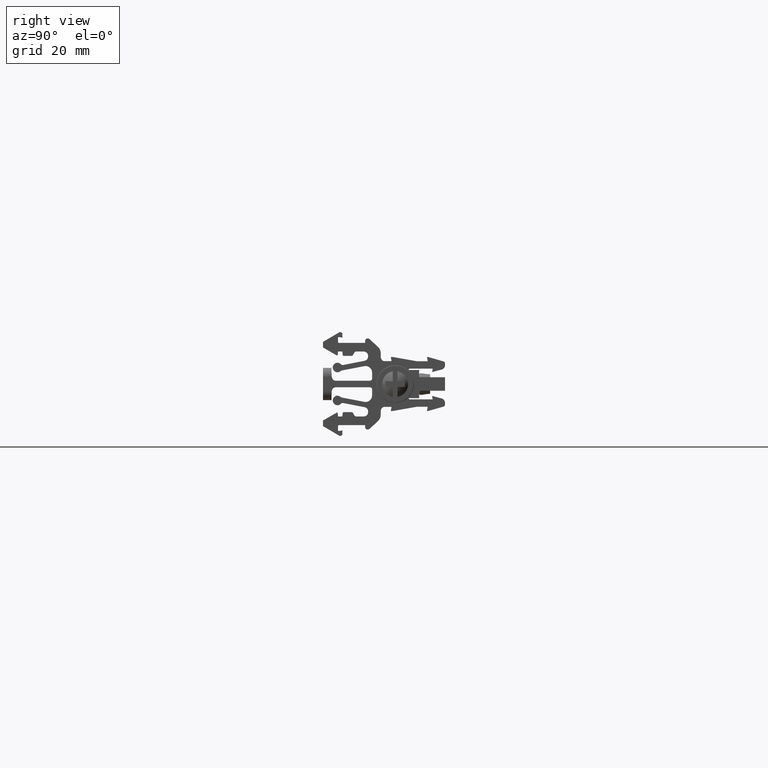
[diagram: clean part render]
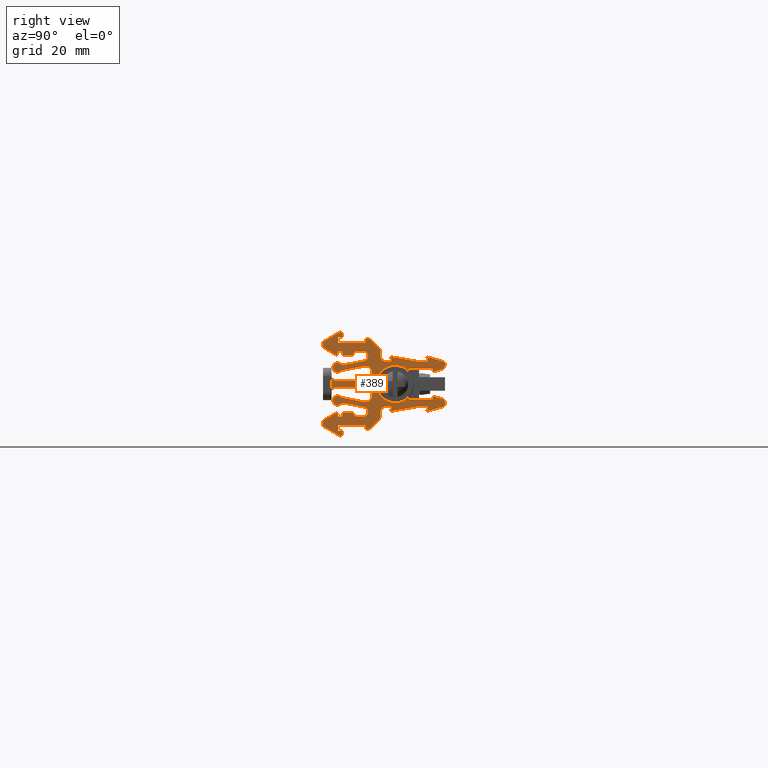
[diagram: same view with one face highlighted and labeled with its STEP entity id]
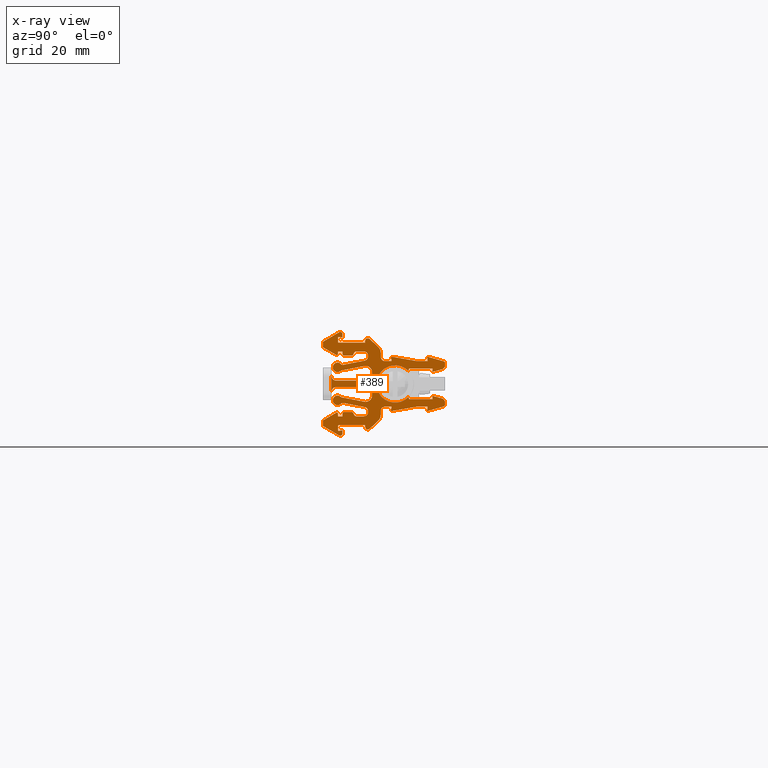
[diagram: x-ray of the same camera — body ghosted, the highlighted face saturated]
A machine part, right view. The second image highlights one B-rep face of the part: STEP entity #389.
The next image is the same camera in x-ray: the body ghosted, the highlighted face saturated — about 0% of this face is hidden behind the body in this view.
In plain terms, the highlighted planar face has unit normal (1, 0, 0).
Its self-contained STEP definition (entity closure, byte-faithful):
#77 = AXIS2_PLACEMENT_3D ( 'NONE', #4308, #4285, #4309 ) ;
#83 = VECTOR ( 'NONE', #4359, 1000.000000000000200 ) ;
#91 = VECTOR ( 'NONE', #4270, 1000.000000000000000 ) ;
#96 = CIRCLE ( 'NONE', #77, 4.325000000000079200 ) ;
#115 = VECTOR ( 'NONE', #4425, 1000.000000000000100 ) ;
#127 = VECTOR ( 'NONE', #4404, 1000.000000000000000 ) ;
#131 = VECTOR ( 'NONE', #4428, 1000.000000000000000 ) ;
#143 = VECTOR ( 'NONE', #4431, 1000.000000000000000 ) ;
#389 = ADVANCED_FACE ( 'NONE', ( #6123 ), #6193, .T. ) ;
#638 = AXIS2_PLACEMENT_3D ( 'NONE', #19970, #18094, #18223 ) ;
#648 = CIRCLE ( 'NONE', #638, 4.325000000000079200 ) ;
#650 = AXIS2_PLACEMENT_3D ( 'NONE', #18888, #18899, #18900 ) ;
#664 = CIRCLE ( 'NONE', #650, 1.100000000040485300 ) ;
#681 = AXIS2_PLACEMENT_3D ( 'NONE', #11523, #11505, #11556 ) ;
#709 = CIRCLE ( 'NONE', #681, 1.100000000040443700 ) ;
#1239 = DIRECTION ( 'NONE',  ( -1.000000000000000000, -1.101172293446148100E-014, -2.403906012228000300E-015 ) ) ;
#1243 = DIRECTION ( 'NONE',  ( 9.251858538201516900E-015, -1.000000000000000000, 0.0000000000000000000 ) ) ;
#1246 = DIRECTION ( 'NONE',  ( 1.387778780730522800E-014, -1.000000000000000000, 0.0000000000000000000 ) ) ;
#1248 = CARTESIAN_POINT ( 'NONE',  ( -53.94164581438641200, -108.1934225035583900, 220.8672390653414900 ) ) ;
#1249 = DIRECTION ( 'NONE',  ( -1.000000000000000000, -1.101172293446148100E-014, -2.403906012228000300E-015 ) ) ;
#1273 = CARTESIAN_POINT ( 'NONE',  ( -53.94164581438646900, -102.8928610939154000, 218.6392675874670300 ) ) ;
#1275 = DIRECTION ( 'NONE',  ( 1.387778780730850200E-014, -1.000000000000000000, 0.0000000000000000000 ) ) ;
#1278 = CARTESIAN_POINT ( 'NONE',  ( -53.94164581438648300, -103.3123492270234300, 222.3223787704589800 ) ) ;
#1280 = DIRECTION ( 'NONE',  ( -1.000000000000000000, -1.101172293446148100E-014, -2.403906012228000300E-015 ) ) ;
#1308 = CARTESIAN_POINT ( 'NONE',  ( -53.94164581438642600, -105.0527141480712000, 222.9835481261500000 ) ) ;
#1312 = DIRECTION ( 'NONE',  ( 1.387778780730445800E-014, -1.000000000000000000, 0.0000000000000000000 ) ) ;
#1317 = DIRECTION ( 'NONE',  ( -1.000000000000000000, -1.101172293446148100E-014, -2.403906012228000300E-015 ) ) ;
#2401 = DIRECTION ( 'NONE',  ( -1.000000000000000000, -1.101172293446148100E-014, -2.403906012228000300E-015 ) ) ;
#2402 = DIRECTION ( 'NONE',  ( -1.000000000000000000, -1.101172293446148100E-014, -2.403906012228000300E-015 ) ) ;
#2404 = DIRECTION ( 'NONE',  ( 0.0000000000000000000, -1.000000000000000000, 0.0000000000000000000 ) ) ;
#2407 = CARTESIAN_POINT ( 'NONE',  ( -53.94164581438642600, -106.0919445134329900, 222.7835482837080000 ) ) ;
#2418 = DIRECTION ( 'NONE',  ( 1.387778780730445800E-014, -1.000000000000000000, 0.0000000000000000000 ) ) ;
#2443 = CARTESIAN_POINT ( 'NONE',  ( -53.94164581438647600, -103.3123490521434300, 222.4835480447754900 ) ) ;
#2825 = CARTESIAN_POINT ( 'NONE',  ( -53.94164581438641200, -102.9868234643094000, 188.2738655272060600 ) ) ;
#2840 = DIRECTION ( 'NONE',  ( -0.0000000000000000000, 0.0000000000000000000, 1.000000000000000000 ) ) ;
#2841 = CARTESIAN_POINT ( 'NONE',  ( -53.94164581438641900, -105.0527143066256000, 208.9835480442849900 ) ) ;
#2842 = DIRECTION ( 'NONE',  ( -1.000000000000000000, -1.101172293446148100E-014, -2.403906012228000300E-015 ) ) ;
#2845 = LINE ( 'NONE', #2825, #9614 ) ;
#2859 = DIRECTION ( 'NONE',  ( 1.387778780730830900E-014, -1.000000000000000000, 0.0000000000000000000 ) ) ;
#2868 = CARTESIAN_POINT ( 'NONE',  ( -53.94164581438638400, -108.7558111070488400, 204.4835463142725000 ) ) ;
#2869 = LINE ( 'NONE', #2879, #9183 ) ;
#2870 = DIRECTION ( 'NONE',  ( -1.000000000000000000, -1.101172293446148100E-014, -2.403906012228000300E-015 ) ) ;
#2874 = DIRECTION ( 'NONE',  ( 0.0000000000000000000, -1.000000000000000000, 0.0000000000000000000 ) ) ;
#2875 = DIRECTION ( 'NONE',  ( -1.111883425166246100E-014, 1.000000000000000000, 0.0000000000000000000 ) ) ;
#2879 = CARTESIAN_POINT ( 'NONE',  ( -53.94164581438646900, -99.69110807736362300, 209.7335481298495100 ) ) ;
#2882 = DIRECTION ( 'NONE',  ( -1.000000000000000000, -1.101172293446148100E-014, -2.403906012228000300E-015 ) ) ;
#2899 = DIRECTION ( 'NONE',  ( 1.387778780730407300E-014, -1.000000000000000000, 0.0000000000000000000 ) ) ;
#2901 = CARTESIAN_POINT ( 'NONE',  ( -53.94164581438641200, -106.0919446172962100, 209.1835480368455600 ) ) ;
#2915 = CARTESIAN_POINT ( 'NONE',  ( -53.94164581438627000, -112.7399380946912100, 188.2738655272060600 ) ) ;
#2918 = LINE ( 'NONE', #2915, #32589 ) ;
#2937 = DIRECTION ( 'NONE',  ( 2.470852055924995400E-015, 2.747299447020945000E-029, -1.000000000000000000 ) ) ;
#2945 = DIRECTION ( 'NONE',  ( 1.387778780729559900E-014, -1.000000000000000000, 0.0000000000000000000 ) ) ;
#2960 = CARTESIAN_POINT ( 'NONE',  ( -53.94164581438641900, -107.8934230886798000, 209.1835480517339900 ) ) ;
#2964 = DIRECTION ( 'NONE',  ( -1.000000000000000000, -1.101172293446148100E-014, -2.403906012228000300E-015 ) ) ;
#2967 = CARTESIAN_POINT ( 'NONE',  ( -53.94164581438637600, -109.0558111724595800, 206.2755480218490000 ) ) ;
#2981 = DIRECTION ( 'NONE',  ( 0.0000000000000000000, -1.000000000000000000, 0.0000000000000000000 ) ) ;
#2982 = CARTESIAN_POINT ( 'NONE',  ( -53.94164581438671700, -85.03786109325220400, 220.7335480447110300 ) ) ;
#2983 = DIRECTION ( 'NONE',  ( 0.0000000000000000000, -1.000000000000000000, 0.0000000000000000000 ) ) ;
#2984 = DIRECTION ( 'NONE',  ( -1.000000000000000000, -1.101172293446148100E-014, -2.403906012228000300E-015 ) ) ;
#2986 = DIRECTION ( 'NONE',  ( -1.000000000000000000, -1.101172293446148100E-014, -2.403906012228000300E-015 ) ) ;
#2990 = DIRECTION ( 'NONE',  ( -1.000000000000000000, -1.101172293446148100E-014, -2.403906012228000300E-015 ) ) ;
#2994 = CARTESIAN_POINT ( 'NONE',  ( -53.94164581438666100, -85.03786109325220400, 211.2335480443684900 ) ) ;
#2995 = CARTESIAN_POINT ( 'NONE',  ( -53.94164581438627000, -112.7399380817970100, 188.2738655272060600 ) ) ;
#3003 = CARTESIAN_POINT ( 'NONE',  ( -53.94164581438641200, -109.0558110941660300, 225.6915481262530000 ) ) ;
#3004 = DIRECTION ( 'NONE',  ( 0.0000000000000000000, -1.000000000000000000, 0.0000000000000000000 ) ) ;
#3007 = CARTESIAN_POINT ( 'NONE',  ( -53.94164581438642600, -102.3365725811034000, 205.9675485491509600 ) ) ;
#3008 = LINE ( 'NONE', #2995, #32682 ) ;
#3011 = DIRECTION ( 'NONE',  ( -1.000000000000000000, -1.101172293446148100E-014, -2.403906012228000300E-015 ) ) ;
#3021 = CARTESIAN_POINT ( 'NONE',  ( -53.94164581438641900, -109.5166753311924000, 222.7965989023300000 ) ) ;
#3022 = DIRECTION ( 'NONE',  ( 1.387779071915591400E-014, -1.000000000000000000, 0.0000000000000000000 ) ) ;
#3025 = DIRECTION ( 'NONE',  ( -1.000000000000000000, -1.101172293446148100E-014, -2.403906012228000300E-015 ) ) ;
#3028 = DIRECTION ( 'NONE',  ( -1.000000000000000000, -1.101172293446148100E-014, -2.403906012228000300E-015 ) ) ;
#3029 = DIRECTION ( 'NONE',  ( 1.387778780730368800E-014, -1.000000000000000000, 0.0000000000000000000 ) ) ;
#3031 = DIRECTION ( 'NONE',  ( 0.0000000000000000000, -1.000000000000000000, 0.0000000000000000000 ) ) ;
#3034 = DIRECTION ( 'NONE',  ( 0.0000000000000000000, -0.1736479610049377600, -0.9848077912155384100 ) ) ;
#3035 = DIRECTION ( 'NONE',  ( -1.000000000000000000, -1.101172293446148100E-014, -2.403906012228000300E-015 ) ) ;
#3039 = CARTESIAN_POINT ( 'NONE',  ( -53.94164581438659700, -88.53786190691479900, 210.7335478909650100 ) ) ;
#3042 = DIRECTION ( 'NONE',  ( 2.470852055924995400E-015, 2.747299447020945000E-029, -1.000000000000000000 ) ) ;
#3052 = CARTESIAN_POINT ( 'NONE',  ( -53.94164581438645500, -101.3928610938594100, 208.8644959932585200 ) ) ;
#3061 = LINE ( 'NONE', #3039, #32667 ) ;
#3063 = DIRECTION ( 'NONE',  ( 1.040834085547740600E-014, -1.000000000000000000, 0.0000000000000000000 ) ) ;
#3081 = LINE ( 'NONE', #3088, #32691 ) ;
#3087 = LINE ( 'NONE', #3093, #32646 ) ;
#3088 = CARTESIAN_POINT ( 'NONE',  ( -53.94164581438651100, -91.34529891880730200, 189.7709877838960000 ) ) ;
#3089 = LINE ( 'NONE', #3108, #32668 ) ;
#3090 = DIRECTION ( 'NONE',  ( 2.470852055924995400E-015, 2.747299447020945000E-029, -1.000000000000000000 ) ) ;
#3093 = CARTESIAN_POINT ( 'NONE',  ( -53.94164581438649700, -99.83610807736360500, 209.7335481298495100 ) ) ;
#3097 = DIRECTION ( 'NONE',  ( 5.025963780430195900E-016, 0.1736440734325845100, -0.9848084766906402000 ) ) ;
#3098 = DIRECTION ( 'NONE',  ( 1.016407620198325300E-043, -1.000000000000000000, -4.228150414484355300E-029 ) ) ;
#3103 = DIRECTION ( 'NONE',  ( 1.040834085547856100E-014, -1.000000000000000000, 0.0000000000000000000 ) ) ;
#3104 = CARTESIAN_POINT ( 'NONE',  ( -53.94164581438647600, -101.3928610938594100, 223.1026004017065800 ) ) ;
#3108 = CARTESIAN_POINT ( 'NONE',  ( -53.94164581438638400, -102.9868230936690300, 188.2738655272060600 ) ) ;
#3112 = DIRECTION ( 'NONE',  ( -1.000000000000000000, -1.101172293446148100E-014, -2.403906012228000300E-015 ) ) ;
#3127 = CARTESIAN_POINT ( 'NONE',  ( -53.94164581438660400, -99.98110807736360100, 222.2335481465710000 ) ) ;
#3128 = DIRECTION ( 'NONE',  ( 1.387778780731043000E-014, -1.000000000000000000, 0.0000000000000000000 ) ) ;
#3138 = CARTESIAN_POINT ( 'NONE',  ( -53.94164581438648300, -103.3123492270232000, 209.4835478510350100 ) ) ;
#3139 = CARTESIAN_POINT ( 'NONE',  ( -53.94164581438670300, -85.27904207599331700, 219.3387970122321300 ) ) ;
#3140 = CARTESIAN_POINT ( 'NONE',  ( -53.94164581438645500, -85.06484685118063300, 219.4173672329760300 ) ) ;
#3142 = CARTESIAN_POINT ( 'NONE',  ( -53.94164581438639100, -109.5166753884694400, 209.1704972201469800 ) ) ;
#3143 = DIRECTION ( 'NONE',  ( -1.000000000000000000, -1.101172293446148100E-014, -2.403906012228000300E-015 ) ) ;
#3148 = CARTESIAN_POINT ( 'NONE',  ( -53.94164581438645500, -85.16837185117071800, 219.3684508982575200 ) ) ;
#3149 = LINE ( 'NONE', #3127, #32640 ) ;
#3154 = DIRECTION ( 'NONE',  ( -1.000000000000000000, -1.101172293446148100E-014, -2.403906012228000300E-015 ) ) ;
#3156 = DIRECTION ( 'NONE',  ( 0.0000000000000000000, -1.000000000000000000, 0.0000000000000000000 ) ) ;
#3162 = CARTESIAN_POINT ( 'NONE',  ( -53.94164581438672500, -84.97742487930401000, 219.4765251434249900 ) ) ;
#3163 = DIRECTION ( 'NONE',  ( 0.0000000000000000000, 1.000000000000000000, -0.0000000000000000000 ) ) ;
#3171 = CARTESIAN_POINT ( 'NONE',  ( -53.94164581438671000, -85.06484685118209700, 212.5497290434439900 ) ) ;
#3189 = CARTESIAN_POINT ( 'NONE',  ( -53.94164581438661100, -85.27904204815875700, 212.6282993680724500 ) ) ;
#3197 = CARTESIAN_POINT ( 'NONE',  ( -53.94164581438661100, -84.97742487930520400, 212.4905711329964500 ) ) ;
#3210 = CARTESIAN_POINT ( 'NONE',  ( -53.94164581438671000, -85.16837185117209700, 212.5986453781640100 ) ) ;
#3221 = CARTESIAN_POINT ( 'NONE',  ( -53.94164581438649700, -102.3365729946906100, 225.9995481262629900 ) ) ;
#3222 = DIRECTION ( 'NONE',  ( -2.470852055924995400E-015, -2.747299447020945000E-029, 1.000000000000000000 ) ) ;
#3230 = DIRECTION ( 'NONE',  ( -1.000000000000000000, -1.101172293446148100E-014, -2.403906012228000300E-015 ) ) ;
#3232 = CARTESIAN_POINT ( 'NONE',  ( -53.94164581438649000, -92.94444806360849000, 188.2738655272060600 ) ) ;
#3248 = DIRECTION ( 'NONE',  ( 1.387778780729791100E-014, -1.000000000000000000, 0.0000000000000000000 ) ) ;
#3258 = LINE ( 'NONE', #3232, #32701 ) ;
#3265 = CARTESIAN_POINT ( 'NONE',  ( -53.94164581438657500, -92.64682934750618400, 212.7311672418794900 ) ) ;
#3282 = DIRECTION ( 'NONE',  ( -1.000000000000000000, -1.101172293446148100E-014, -2.403906012228000300E-015 ) ) ;
#3300 = DIRECTION ( 'NONE',  ( 0.0000000000000000000, -1.000000000000000000, 0.0000000000000000000 ) ) ;
#3316 = DIRECTION ( 'NONE',  ( -8.541846186238229600E-015, 0.1736488337378664900, -0.9848076373289753600 ) ) ;
#3349 = LINE ( 'NONE', #3352, #32742 ) ;
#3352 = CARTESIAN_POINT ( 'NONE',  ( -53.94164581438661100, -87.53786168383322800, 213.2335480493385400 ) ) ;
#3356 = DIRECTION ( 'NONE',  ( -0.0000000000000000000, -0.1736478832043744900, 0.9848078049338561100 ) ) ;
#3363 = CARTESIAN_POINT ( 'NONE',  ( -53.94164581438661100, -83.24648844198979700, 191.2246253215074900 ) ) ;
#3371 = DIRECTION ( 'NONE',  ( 1.387778780730407300E-014, -1.000000000000000000, 0.0000000000000000000 ) ) ;
#3374 = LINE ( 'NONE', #3397, #32776 ) ;
#3377 = LINE ( 'NONE', #3363, #32773 ) ;
#3388 = DIRECTION ( 'NONE',  ( 0.0000000000000000000, 0.1736441564079001500, -0.9848084620602062200 ) ) ;
#3391 = CARTESIAN_POINT ( 'NONE',  ( -53.94164581438641900, -108.7558110941545900, 227.4835498338295000 ) ) ;
#3396 = DIRECTION ( 'NONE',  ( -1.000000000000000000, -1.101172293446148100E-014, -2.403906012228000300E-015 ) ) ;
#3397 = CARTESIAN_POINT ( 'NONE',  ( -53.94164581438652600, -97.01194074112694900, 221.9088937352711900 ) ) ;
#4039 = LINE ( 'NONE', #4040, #32493 ) ;
#4040 = CARTESIAN_POINT ( 'NONE',  ( -53.94164581438650400, -96.67468207243092600, 209.7335481298495700 ) ) ;
#4042 = DIRECTION ( 'NONE',  ( -7.695577726010210500E-015, 0.9848078853842465700, 0.1736474269461217600 ) ) ;
#4044 = LINE ( 'NONE', #4086, #32513 ) ;
#4077 = LINE ( 'NONE', #4091, #32562 ) ;
#4084 = CARTESIAN_POINT ( 'NONE',  ( -53.94164581438645500, -101.3928610982064700, 213.3278285016130000 ) ) ;
#4085 = CARTESIAN_POINT ( 'NONE',  ( -53.94164581438629800, -101.4117033491429800, 213.0523052027680000 ) ) ;
#4086 = CARTESIAN_POINT ( 'NONE',  ( -53.94164581438649700, -99.69110807736362300, 222.4835481261342800 ) ) ;
#4087 = DIRECTION ( 'NONE',  ( -9.598648363710063500E-015, 0.9817353061411311400, -0.1902519084686918300 ) ) ;
#4088 = CARTESIAN_POINT ( 'NONE',  ( -53.94164581438659700, -88.47789138541131100, 209.7335481298495400 ) ) ;
#4089 = DIRECTION ( 'NONE',  ( 1.147286948606438200E-014, -0.9611011415393145900, 0.2761966613335981600 ) ) ;
#4091 = CARTESIAN_POINT ( 'NONE',  ( -53.94164581438648300, -99.69110807736362300, 216.7335480981484700 ) ) ;
#4093 = CARTESIAN_POINT ( 'NONE',  ( -53.94164581438629800, -101.4886356525234000, 212.7820334275660100 ) ) ;
#4094 = CARTESIAN_POINT ( 'NONE',  ( -53.94164581438629800, -101.3928610938611900, 213.1900601090254700 ) ) ;
#4097 = LINE ( 'NONE', #4118, #32503 ) ;
#4098 = CARTESIAN_POINT ( 'NONE',  ( -53.94164581438666800, -84.99019607422562200, 221.2312709053270800 ) ) ;
#4101 = CARTESIAN_POINT ( 'NONE',  ( -53.94164581438629800, -101.5475021542552000, 212.6478591208304700 ) ) ;
#4102 = DIRECTION ( 'NONE',  ( -1.111883425166246100E-014, 1.000000000000000000, 0.0000000000000000000 ) ) ;
#4103 = LINE ( 'NONE', #4088, #32536 ) ;
#4116 = LINE ( 'NONE', #4098, #32507 ) ;
#4118 = CARTESIAN_POINT ( 'NONE',  ( -53.94164581438638400, -108.1065984147296000, 211.5922609002635700 ) ) ;
#4120 = DIRECTION ( 'NONE',  ( -1.147286964965054200E-014, 0.9611011552434144400, 0.2761966136464643600 ) ) ;
#4124 = DIRECTION ( 'NONE',  ( -9.789517470045135700E-015, 0.8614430768973292400, -0.5078541377853115200 ) ) ;
#4125 = CARTESIAN_POINT ( 'NONE',  ( -53.94164581438646900, -99.69110807736362300, 210.7335478432760300 ) ) ;
#4126 = DIRECTION ( 'NONE',  ( -1.111883425166246100E-014, 1.000000000000000000, 0.0000000000000000000 ) ) ;
#4127 = CARTESIAN_POINT ( 'NONE',  ( -53.94164581438629800, -101.8124523077261800, 212.2741950973935200 ) ) ;
#4128 = CARTESIAN_POINT ( 'NONE',  ( -53.94164581438649700, -100.0426307977397900, 224.5780251363966900 ) ) ;
#4131 = CARTESIAN_POINT ( 'NONE',  ( -53.94164581438629800, -102.2273217071745800, 211.9807297903695400 ) ) ;
#4132 = CARTESIAN_POINT ( 'NONE',  ( -53.94164581438629800, -102.3075559082764300, 211.9437748767979900 ) ) ;
#4133 = DIRECTION ( 'NONE',  ( -1.061350949249519200E-014, 0.9848076356716387600, 0.1736488431370529500 ) ) ;
#4134 = CARTESIAN_POINT ( 'NONE',  ( -53.94164581438649000, -92.94444790497152600, 188.2738655272060600 ) ) ;
#4136 = LINE ( 'NONE', #4125, #32553 ) ;
#4140 = LINE ( 'NONE', #4180, #32547 ) ;
#4141 = CARTESIAN_POINT ( 'NONE',  ( -53.94164581438645500, -102.3928610938965800, 211.9136149391879700 ) ) ;
#4143 = DIRECTION ( 'NONE',  ( 5.233028146580654100E-015, -0.7377123764337133500, 0.6751151380738869000 ) ) ;
#4145 = CARTESIAN_POINT ( 'NONE',  ( -53.94164581438641200, -109.0763486557806300, 227.8672889009118300 ) ) ;
#4148 = CARTESIAN_POINT ( 'NONE',  ( -53.94164581438629800, -102.0755775018509900, 212.0670092666389600 ) ) ;
#4149 = LINE ( 'NONE', #4150, #32528 ) ;
#4150 = CARTESIAN_POINT ( 'NONE',  ( -53.94164581438631200, -112.7399380946911500, 206.2596354459956300 ) ) ;
#4151 = DIRECTION ( 'NONE',  ( 1.142110397056273100E-014, -0.8614430961689394400, -0.5078541050960122500 ) ) ;
#4152 = DIRECTION ( 'NONE',  ( -2.470852055924995400E-015, -2.747299447020945000E-029, 1.000000000000000000 ) ) ;
#4153 = LINE ( 'NONE', #4168, #32485 ) ;
#4154 = LINE ( 'NONE', #4128, #32530 ) ;
#4155 = CARTESIAN_POINT ( 'NONE',  ( -53.94164581438629800, -102.0043592654020000, 212.1164569133719900 ) ) ;
#4156 = DIRECTION ( 'NONE',  ( 1.261617073391292000E-014, -1.000000000000000000, -2.523234146782583900E-014 ) ) ;
#4157 = LINE ( 'NONE', #4134, #32540 ) ;
#4160 = DIRECTION ( 'NONE',  ( 1.000000000000000000, 1.101172293446148100E-014, 2.403906012228000300E-015 ) ) ;
#4162 = CARTESIAN_POINT ( 'NONE',  ( -53.94164581438641200, -109.3792873133011900, 212.1739727778364700 ) ) ;
#4164 = DIRECTION ( 'NONE',  ( 1.111883425166246100E-014, -1.000000000000000000, -0.0000000000000000000 ) ) ;
#4165 = LINE ( 'NONE', #4145, #32488 ) ;
#4166 = CARTESIAN_POINT ( 'NONE',  ( -53.94164581438629800, -101.7081697813876000, 212.3957042988669700 ) ) ;
#4168 = CARTESIAN_POINT ( 'NONE',  ( -53.94164581438651100, -95.78670748810360200, 209.8901213092995000 ) ) ;
#4169 = LINE ( 'NONE', #4210, #32560 ) ;
#4170 = CARTESIAN_POINT ( 'NONE',  ( -53.94164581438632000, -102.3075559082768100, 220.0233212122810200 ) ) ;
#4171 = CARTESIAN_POINT ( 'NONE',  ( -53.94164581438636200, -112.7399380817969900, 224.4266105503101600 ) ) ;
#4172 = DIRECTION ( 'NONE',  ( -7.696129042182670100E-015, 0.8660253871031005100, -0.5000000288929241600 ) ) ;
#4173 = LINE ( 'NONE', #4198, #32568 ) ;
#4175 = CARTESIAN_POINT ( 'NONE',  ( -53.94164581438648300, -99.69110807736362300, 215.2335481211337700 ) ) ;
#4180 = CARTESIAN_POINT ( 'NONE',  ( -53.94164581438646200, -99.69110807736362300, 208.4835478509983200 ) ) ;
#4183 = DIRECTION ( 'NONE',  ( 1.000000000000000000, 1.101172293446148100E-014, 2.403906012228000300E-015 ) ) ;
#4190 = LINE ( 'NONE', #4175, #32545 ) ;
#4193 = DIRECTION ( 'NONE',  ( 1.261617073391244300E-014, -1.000000000000000000, -5.046468293564977300E-014 ) ) ;
#4195 = CARTESIAN_POINT ( 'NONE',  ( -53.94164581438647600, -102.3928610938969500, 220.0534811498921500 ) ) ;
#4196 = DIRECTION ( 'NONE',  ( 1.096988390776678700E-014, -0.9817353137201074700, -0.1902518693597573300 ) ) ;
#4197 = DIRECTION ( 'NONE',  ( 1.111883425166246100E-014, -1.000000000000000000, -0.0000000000000000000 ) ) ;
#4198 = CARTESIAN_POINT ( 'NONE',  ( -53.94164581438646900, -99.69110807736362300, 209.4835480517454900 ) ) ;
#4199 = CARTESIAN_POINT ( 'NONE',  ( -53.94164581438643300, -101.9990152264740300, 205.5986923069055800 ) ) ;
#4200 = CARTESIAN_POINT ( 'NONE',  ( -53.94164581438641200, -109.3792873133011900, 219.7931233112435100 ) ) ;
#4202 = DIRECTION ( 'NONE',  ( -1.111883425166246100E-014, 1.000000000000000000, 0.0000000000000000000 ) ) ;
#4205 = DIRECTION ( 'NONE',  ( -1.046605794798067400E-014, 0.7377123847283474400, 0.6751151290101672400 ) ) ;
#4209 = LINE ( 'NONE', #4199, #32551 ) ;
#4210 = CARTESIAN_POINT ( 'NONE',  ( -53.94164581438645500, -103.1387010397625700, 221.3375710191013500 ) ) ;
#4211 = LINE ( 'NONE', #4171, #32558 ) ;
#4216 = DIRECTION ( 'NONE',  ( 1.111883425166246100E-014, -1.000000000000000000, -0.0000000000000000000 ) ) ;
#4218 = CARTESIAN_POINT ( 'NONE',  ( -53.94164581438632000, -101.4117033491418200, 218.9147908863120900 ) ) ;
#4219 = CARTESIAN_POINT ( 'NONE',  ( -53.94164581438632000, -101.3928610938602300, 218.7770359800545400 ) ) ;
#4223 = CARTESIAN_POINT ( 'NONE',  ( -53.94164581438632000, -101.4886356525226000, 219.1850626615140500 ) ) ;
#4225 = LINE ( 'NONE', #4257, #32539 ) ;
#4226 = LINE ( 'NONE', #4235, #32595 ) ;
#4229 = CARTESIAN_POINT ( 'NONE',  ( -53.94164581438632000, -102.2273217071750100, 219.9863662987095300 ) ) ;
#4230 = CARTESIAN_POINT ( 'NONE',  ( -53.94164581438632000, -101.8124523077238000, 219.6929009916865400 ) ) ;
#4231 = DIRECTION ( 'NONE',  ( -1.111883425166246100E-014, 1.000000000000000000, 0.0000000000000000000 ) ) ;
#4234 = LINE ( 'NONE', #4268, #32567 ) ;
#4235 = CARTESIAN_POINT ( 'NONE',  ( -53.94164581438662500, -87.53786168383226100, 218.7335481834413100 ) ) ;
#4237 = CARTESIAN_POINT ( 'NONE',  ( -53.94164581438632000, -102.0755775018502000, 219.9000868224390200 ) ) ;
#4238 = CARTESIAN_POINT ( 'NONE',  ( -53.94164581438632000, -102.0043592654020000, 219.8506391757065600 ) ) ;
#4239 = DIRECTION ( 'NONE',  ( 1.111883425166246100E-014, -1.000000000000000000, -0.0000000000000000000 ) ) ;
#4242 = LINE ( 'NONE', #4248, #32638 ) ;
#4244 = DIRECTION ( 'NONE',  ( -1.186895465160165100E-014, 0.9659258351885280400, 0.2588190118892825200 ) ) ;
#4245 = CARTESIAN_POINT ( 'NONE',  ( -53.94164581438632000, -101.5475021542544200, 219.3192369682495000 ) ) ;
#4247 = DIRECTION ( 'NONE',  ( 2.470852055924995400E-015, 2.747299447020945000E-029, -1.000000000000000000 ) ) ;
#4248 = CARTESIAN_POINT ( 'NONE',  ( -53.94164581438655400, -92.44813041004259400, 210.4788031020665100 ) ) ;
#4249 = DIRECTION ( 'NONE',  ( -8.297499450859623800E-015, 0.9848078747361440600, 0.1736474873347702300 ) ) ;
#4257 = CARTESIAN_POINT ( 'NONE',  ( -53.94164581438645500, -99.69110807736362300, 206.4755481298155600 ) ) ;
#4262 = CARTESIAN_POINT ( 'NONE',  ( -53.94164581438646900, -101.3928610982064700, 218.6392675874664900 ) ) ;
#4263 = LINE ( 'NONE', #4265, #32626 ) ;
#4265 = CARTESIAN_POINT ( 'NONE',  ( -53.94164581438629100, -110.7558110765636300, 188.2738655272060600 ) ) ;
#4267 = CARTESIAN_POINT ( 'NONE',  ( -53.94164581438632000, -101.7081697813858200, 219.5713917902130000 ) ) ;
#4268 = CARTESIAN_POINT ( 'NONE',  ( -53.94164581438650400, -99.69110807736362300, 225.4915483486265100 ) ) ;
#4270 = DIRECTION ( 'NONE',  ( 1.111883425166246100E-014, -1.000000000000000000, -0.0000000000000000000 ) ) ;
#4278 = LINE ( 'NONE', #4279, #32519 ) ;
#4279 = CARTESIAN_POINT ( 'NONE',  ( -53.94164581438663900, -85.27904204815875700, 212.6282993680724800 ) ) ;
#4280 = DIRECTION ( 'NONE',  ( -1.100090733005640200E-014, 0.9848077502781822400, 0.1736481931723601900 ) ) ;
#4281 = LINE ( 'NONE', #4312, #32625 ) ;
#4285 = DIRECTION ( 'NONE',  ( -1.000000000000000000, -1.101172293446148100E-014, -2.403906012228000300E-015 ) ) ;
#4290 = LINE ( 'NONE', #4311, #32538 ) ;
#4294 = DIRECTION ( 'NONE',  ( -1.042172147553190300E-014, 0.9818955014187102900, 0.1894233995410795100 ) ) ;
#4295 = DIRECTION ( 'NONE',  ( 1.186895470892961200E-014, -0.9659258493765455800, 0.2588189589388669700 ) ) ;
#4296 = CARTESIAN_POINT ( 'NONE',  ( -53.94164581438639800, -108.3833857851068100, 219.1075181731914700 ) ) ;
#4304 = DIRECTION ( 'NONE',  ( 1.154419399836010000E-014, -0.8660254095965089800, -0.4999999899331986600 ) ) ;
#4305 = LINE ( 'NONE', #4307, #91 ) ;
#4307 = CARTESIAN_POINT ( 'NONE',  ( -53.94164581438647600, -99.69110807736362300, 212.4335481942495100 ) ) ;
#4308 = CARTESIAN_POINT ( 'NONE',  ( -53.94164581438656100, -96.05918132484990200, 215.9713441700650700 ) ) ;
#4309 = DIRECTION ( 'NONE',  ( 1.123057972886698400E-014, -1.000000000000000000, 0.0000000000000000000 ) ) ;
#4311 = CARTESIAN_POINT ( 'NONE',  ( -53.94164581438656100, -91.62457177059990000, 210.6240181151474900 ) ) ;
#4312 = CARTESIAN_POINT ( 'NONE',  ( -53.94164581438636200, -109.6166753864597200, 209.3437023020729800 ) ) ;
#4313 = LINE ( 'NONE', #4296, #32743 ) ;
#4330 = LINE ( 'NONE', #4342, #83 ) ;
#4342 = CARTESIAN_POINT ( 'NONE',  ( -53.94164581438651900, -95.14286053959753500, 210.0036493463655100 ) ) ;
#4359 = DIRECTION ( 'NONE',  ( -1.267933360633010600E-014, 0.9848077450043368800, 0.1736482230818181300 ) ) ;
#4404 = DIRECTION ( 'NONE',  ( 1.111883425166246100E-014, -1.000000000000000000, -0.0000000000000000000 ) ) ;
#4411 = LINE ( 'NONE', #4426, #127 ) ;
#4424 = CARTESIAN_POINT ( 'NONE',  ( -53.94164581438643300, -103.1533333370015600, 211.8506166551809400 ) ) ;
#4425 = DIRECTION ( 'NONE',  ( 9.119006181404371700E-015, -0.9818954940040667300, 0.1894234379756364900 ) ) ;
#4426 = CARTESIAN_POINT ( 'NONE',  ( -53.94164581438649700, -99.69110807736362300, 222.2335482073630100 ) ) ;
#4427 = LINE ( 'NONE', #4439, #131 ) ;
#4428 = DIRECTION ( 'NONE',  ( 1.111883425166246100E-014, -1.000000000000000000, -0.0000000000000000000 ) ) ;
#4429 = LINE ( 'NONE', #4437, #143 ) ;
#4430 = LINE ( 'NONE', #4424, #115 ) ;
#4431 = DIRECTION ( 'NONE',  ( -1.111883425166246100E-014, 1.000000000000000000, 0.0000000000000000000 ) ) ;
#4437 = CARTESIAN_POINT ( 'NONE',  ( -53.94164581438650400, -99.69110807736362300, 223.4835480448201700 ) ) ;
#4439 = CARTESIAN_POINT ( 'NONE',  ( -53.94164581438649700, -99.69110807736362300, 221.2335479234895100 ) ) ;
#4611 = EDGE_CURVE ( 'NONE', #24675, #7473, #23503, .T. ) ;
#4612 = EDGE_CURVE ( 'NONE', #7469, #24683, #23498, .T. ) ;
#4661 = EDGE_CURVE ( 'NONE', #7424, #24619, #23504, .T. ) ;
#4793 = AXIS2_PLACEMENT_3D ( 'NONE', #14820, #14826, #14821 ) ;
#4801 = CIRCLE ( 'NONE', #4826, 0.5000000000182636100 ) ;
#4826 = AXIS2_PLACEMENT_3D ( 'NONE', #14843, #14815, #14852 ) ;
#4828 = CIRCLE ( 'NONE', #4793, 1.500000000055193200 ) ;
#5226 = VECTOR ( 'NONE', #26582, 1000.000000000000000 ) ;
#5229 = AXIS2_PLACEMENT_3D ( 'NONE', #26528, #26502, #26453 ) ;
#5231 = VECTOR ( 'NONE', #26436, 1000.000000000000100 ) ;
#5233 = VECTOR ( 'NONE', #26594, 1000.000000000000000 ) ;
#5235 = VECTOR ( 'NONE', #26635, 1000.000000000000000 ) ;
#5243 = CIRCLE ( 'NONE', #5229, 0.5000000000187077000 ) ;
#5247 = VECTOR ( 'NONE', #26375, 1000.000000000000000 ) ;
#5249 = VECTOR ( 'NONE', #26509, 1000.000000000000000 ) ;
#5258 = VECTOR ( 'NONE', #26451, 1000.000000000000000 ) ;
#5263 = VECTOR ( 'NONE', #26488, 1000.000000000000000 ) ;
#5271 = CIRCLE ( 'NONE', #5275, 1.000000000036874100 ) ;
#5275 = AXIS2_PLACEMENT_3D ( 'NONE', #26979, #27043, #27030 ) ;
#5276 = CIRCLE ( 'NONE', #5286, 0.2000000000074858600 ) ;
#5286 = AXIS2_PLACEMENT_3D ( 'NONE', #26981, #27068, #26970 ) ;
#5288 = VECTOR ( 'NONE', #27024, 1000.000000000000000 ) ;
#5298 = AXIS2_PLACEMENT_3D ( 'NONE', #26834, #26809, #26814 ) ;
#5299 = CIRCLE ( 'NONE', #5321, 1.000000000036832500 ) ;
#5316 = VECTOR ( 'NONE', #26831, 1000.000000000000100 ) ;
#5317 = VECTOR ( 'NONE', #26651, 999.9999999999998900 ) ;
#5321 = AXIS2_PLACEMENT_3D ( 'NONE', #26674, #26675, #26702 ) ;
#5323 = CIRCLE ( 'NONE', #5298, 0.2000000000076662700 ) ;
#5580 = EDGE_CURVE ( 'NONE', #30963, #31723, #28266, .T. ) ;
#5583 = EDGE_CURVE ( 'NONE', #30960, #31749, #22972, .T. ) ;
#5594 = EDGE_CURVE ( 'NONE', #24582, #31732, #28295, .T. ) ;
#5599 = EDGE_CURVE ( 'NONE', #24470, #24504, #28336, .T. ) ;
#5605 = EDGE_CURVE ( 'NONE', #24649, #24675, #28377, .T. ) ;
#5610 = EDGE_CURVE ( 'NONE', #24574, #24504, #23609, .T. ) ;
#5636 = EDGE_CURVE ( 'NONE', #30959, #31753, #28543, .T. ) ;
#5638 = EDGE_CURVE ( 'NONE', #31744, #24507, #28440, .T. ) ;
#5646 = EDGE_CURVE ( 'NONE', #24533, #31750, #15233, .T. ) ;
#5648 = EDGE_CURVE ( 'NONE', #24563, #31762, #14979, .T. ) ;
#5720 = EDGE_CURVE ( 'NONE', #30951, #31692, #22984, .T. ) ;
#5724 = EDGE_CURVE ( 'NONE', #30855, #24597, #15212, .T. ) ;
#5728 = EDGE_CURVE ( 'NONE', #24658, #24679, #21597, .T. ) ;
#5731 = EDGE_CURVE ( 'NONE', #24654, #24649, #21599, .T. ) ;
#5741 = EDGE_CURVE ( 'NONE', #30941, #30953, #21317, .T. ) ;
#5746 = EDGE_CURVE ( 'NONE', #30954, #31766, #21332, .T. ) ;
#6123 = FACE_OUTER_BOUND ( 'NONE', #9828, .T. ) ;
#6127 = DIRECTION ( 'NONE',  ( -1.111883425166246100E-014, 1.000000000000000000, 0.0000000000000000000 ) ) ;
#6162 = CARTESIAN_POINT ( 'NONE',  ( -53.94164581438641900, -99.69110807736362300, 188.2738655272060600 ) ) ;
#6193 = PLANE ( 'NONE',  #23171 ) ;
#6195 = DIRECTION ( 'NONE',  ( 1.000000000000000000, 1.111883425166246100E-014, 2.470852055924995400E-015 ) ) ;
#7407 = VERTEX_POINT ( 'NONE', #21589 ) ;
#7408 = VERTEX_POINT ( 'NONE', #21573 ) ;
#7421 = VERTEX_POINT ( 'NONE', #22671 ) ;
#7423 = VERTEX_POINT ( 'NONE', #22634 ) ;
#7424 = VERTEX_POINT ( 'NONE', #22631 ) ;
#7425 = VERTEX_POINT ( 'NONE', #22653 ) ;
#7430 = VERTEX_POINT ( 'NONE', #22661 ) ;
#7445 = VERTEX_POINT ( 'NONE', #22670 ) ;
#7450 = VERTEX_POINT ( 'NONE', #22655 ) ;
#7456 = VERTEX_POINT ( 'NONE', #22685 ) ;
#7460 = VERTEX_POINT ( 'NONE', #22647 ) ;
#7462 = VERTEX_POINT ( 'NONE', #22648 ) ;
#7466 = VERTEX_POINT ( 'NONE', #22677 ) ;
#7469 = VERTEX_POINT ( 'NONE', #22669 ) ;
#7472 = VERTEX_POINT ( 'NONE', #22679 ) ;
#7473 = VERTEX_POINT ( 'NONE', #22680 ) ;
#7484 = VERTEX_POINT ( 'NONE', #22737 ) ;
#7494 = VERTEX_POINT ( 'NONE', #22721 ) ;
#7499 = VERTEX_POINT ( 'NONE', #22734 ) ;
#7500 = VERTEX_POINT ( 'NONE', #22728 ) ;
#7503 = VERTEX_POINT ( 'NONE', #22730 ) ;
#7504 = VERTEX_POINT ( 'NONE', #22735 ) ;
#7506 = VERTEX_POINT ( 'NONE', #22693 ) ;
#7515 = VERTEX_POINT ( 'NONE', #22741 ) ;
#7516 = VERTEX_POINT ( 'NONE', #22746 ) ;
#7517 = VERTEX_POINT ( 'NONE', #22742 ) ;
#7518 = VERTEX_POINT ( 'NONE', #22738 ) ;
#7519 = VERTEX_POINT ( 'NONE', #22732 ) ;
#7520 = VERTEX_POINT ( 'NONE', #22699 ) ;
#7521 = VERTEX_POINT ( 'NONE', #22700 ) ;
#7530 = VERTEX_POINT ( 'NONE', #22724 ) ;
#7533 = VERTEX_POINT ( 'NONE', #22747 ) ;
#7534 = VERTEX_POINT ( 'NONE', #22719 ) ;
#7541 = VERTEX_POINT ( 'NONE', #22783 ) ;
#7543 = VERTEX_POINT ( 'NONE', #22802 ) ;
#7544 = VERTEX_POINT ( 'NONE', #22757 ) ;
#7545 = VERTEX_POINT ( 'NONE', #22774 ) ;
#7546 = VERTEX_POINT ( 'NONE', #22779 ) ;
#7551 = VERTEX_POINT ( 'NONE', #22758 ) ;
#7552 = VERTEX_POINT ( 'NONE', #22791 ) ;
#7553 = VERTEX_POINT ( 'NONE', #22798 ) ;
#7554 = VERTEX_POINT ( 'NONE', #22763 ) ;
#7559 = VERTEX_POINT ( 'NONE', #22759 ) ;
#7563 = VERTEX_POINT ( 'NONE', #22790 ) ;
#7565 = VERTEX_POINT ( 'NONE', #22752 ) ;
#7567 = VERTEX_POINT ( 'NONE', #22755 ) ;
#7570 = VERTEX_POINT ( 'NONE', #22786 ) ;
#7571 = VERTEX_POINT ( 'NONE', #22803 ) ;
#7573 = VERTEX_POINT ( 'NONE', #22787 ) ;
#7574 = VERTEX_POINT ( 'NONE', #22795 ) ;
#7575 = VERTEX_POINT ( 'NONE', #22761 ) ;
#7593 = VERTEX_POINT ( 'NONE', #22776 ) ;
#7594 = VERTEX_POINT ( 'NONE', #22775 ) ;
#7607 = VERTEX_POINT ( 'NONE', #28156 ) ;
#7610 = VERTEX_POINT ( 'NONE', #28168 ) ;
#7629 = VERTEX_POINT ( 'NONE', #28150 ) ;
#7630 = VERTEX_POINT ( 'NONE', #28151 ) ;
#7634 = VERTEX_POINT ( 'NONE', #28179 ) ;
#7635 = VERTEX_POINT ( 'NONE', #28182 ) ;
#7637 = VERTEX_POINT ( 'NONE', #28153 ) ;
#7639 = VERTEX_POINT ( 'NONE', #28162 ) ;
#7663 = VERTEX_POINT ( 'NONE', #28078 ) ;
#7708 = VERTEX_POINT ( 'NONE', #28132 ) ;
#7709 = VERTEX_POINT ( 'NONE', #28134 ) ;
#7732 = VERTEX_POINT ( 'NONE', #12398 ) ;
#7733 = VERTEX_POINT ( 'NONE', #12408 ) ;
#7735 = VERTEX_POINT ( 'NONE', #12393 ) ;
#7748 = VERTEX_POINT ( 'NONE', #12390 ) ;
#7766 = VERTEX_POINT ( 'NONE', #11881 ) ;
#7767 = VERTEX_POINT ( 'NONE', #11854 ) ;
#7824 = VERTEX_POINT ( 'NONE', #11977 ) ;
#7893 = VERTEX_POINT ( 'NONE', #12118 ) ;
#7917 = VERTEX_POINT ( 'NONE', #12152 ) ;
#8025 = CARTESIAN_POINT ( 'NONE',  ( -53.94164581438651100, -98.39286063971971400, 210.7335480061385300 ) ) ;
#8029 = CARTESIAN_POINT ( 'NONE',  ( -53.94164581438641900, -109.2558110941734000, 226.6406094055550700 ) ) ;
#8035 = CARTESIAN_POINT ( 'NONE',  ( -53.94164581438669600, -84.62933915157380200, 212.0802237862785700 ) ) ;
#8036 = CARTESIAN_POINT ( 'NONE',  ( -53.94164581438641900, -108.2558109364919800, 226.7026335723966200 ) ) ;
#8038 = CARTESIAN_POINT ( 'NONE',  ( -53.94164581438639100, -109.2558111724670100, 205.3264863841639000 ) ) ;
#8042 = CARTESIAN_POINT ( 'NONE',  ( -53.94164581438649000, -99.39286066508286400, 222.2335477816003200 ) ) ;
#8044 = CARTESIAN_POINT ( 'NONE',  ( -53.94164581438640500, -109.2558111595728300, 223.4835480448124900 ) ) ;
#8045 = CARTESIAN_POINT ( 'NONE',  ( -53.94164581438649700, -98.39286063971977100, 221.2335480020750000 ) ) ;
#8047 = CARTESIAN_POINT ( 'NONE',  ( -53.94164581438669600, -84.53786109323380100, 211.6623735417480000 ) ) ;
#8056 = CARTESIAN_POINT ( 'NONE',  ( -53.94164581438641200, -108.2558109364919700, 223.4835480448124900 ) ) ;
#8061 = CARTESIAN_POINT ( 'NONE',  ( -53.94164581438649700, -99.39286087943455100, 209.7335481470515800 ) ) ;
#8064 = CARTESIAN_POINT ( 'NONE',  ( -53.94164581438672500, -84.76419022525330100, 219.6711350232584700 ) ) ;
#8069 = CARTESIAN_POINT ( 'NONE',  ( -53.94164581438672500, -84.53786109323357300, 220.3047227346725400 ) ) ;
#8071 = CARTESIAN_POINT ( 'NONE',  ( -53.94164581438649700, -96.89285716643503600, 210.7335478042088300 ) ) ;
#8430 = CARTESIAN_POINT ( 'NONE',  ( -53.94164581438641900, -109.0210815233665000, 226.8375709675796100 ) ) ;
#8918 = CARTESIAN_POINT ( 'NONE',  ( -53.94164581438669600, -84.57866954373568500, 211.9451306307435600 ) ) ;
#8923 = CARTESIAN_POINT ( 'NONE',  ( -53.94164581438670300, -84.54037298329838300, 220.2338886289144900 ) ) ;
#8936 = CARTESIAN_POINT ( 'NONE',  ( -53.94164581438674600, -84.54037298329879500, 211.7332076475064800 ) ) ;
#8950 = CARTESIAN_POINT ( 'NONE',  ( -53.94164581438639100, -109.0210815279845900, 205.1295248766814200 ) ) ;
#8966 = CARTESIAN_POINT ( 'NONE',  ( -53.94164581438639100, -109.2558111724668800, 208.4835478286644600 ) ) ;
#8968 = CARTESIAN_POINT ( 'NONE',  ( -53.94164581438670300, -84.57866954373550100, 220.0219656456770300 ) ) ;
#8974 = CARTESIAN_POINT ( 'NONE',  ( -53.94164581438673900, -84.64130334862269900, 219.8617958664584900 ) ) ;
#8985 = CARTESIAN_POINT ( 'NONE',  ( -53.94164581438636200, -108.2558110288024100, 205.2644627455681500 ) ) ;
#9016 = CARTESIAN_POINT ( 'NONE',  ( -53.94164581438638400, -108.2558109493859600, 208.4835478286644600 ) ) ;
#9028 = CARTESIAN_POINT ( 'NONE',  ( -53.94164581438639100, -109.3174364496296000, 209.1879283776805800 ) ) ;
#9029 = CARTESIAN_POINT ( 'NONE',  ( -53.94164581438641900, -102.4868223121171300, 205.4675483078142700 ) ) ;
#9030 = CARTESIAN_POINT ( 'NONE',  ( -53.94164581438649700, -97.06918866698488600, 209.7335481298495100 ) ) ;
#9031 = CARTESIAN_POINT ( 'NONE',  ( -53.94164581438665400, -84.53786109323380100, 211.2335480443684900 ) ) ;
#9032 = CARTESIAN_POINT ( 'NONE',  ( -53.94164581438637600, -108.2558111070304500, 204.4835462890385400 ) ) ;
#9041 = CARTESIAN_POINT ( 'NONE',  ( -53.94164581438636200, -109.2558111724670100, 206.2755480943299900 ) ) ;
#9042 = CARTESIAN_POINT ( 'NONE',  ( -53.94164581438642600, -102.3365714289295700, 205.4675486540444900 ) ) ;
#9045 = CARTESIAN_POINT ( 'NONE',  ( -53.94164581438641200, -102.9868234643094000, 205.9675484222698900 ) ) ;
#9050 = CARTESIAN_POINT ( 'NONE',  ( -53.94164581438661100, -84.97742487930520400, 212.4905711329964500 ) ) ;
#9051 = CARTESIAN_POINT ( 'NONE',  ( -53.94164581438672500, -84.53786109323354500, 220.7335480447110300 ) ) ;
#9052 = CARTESIAN_POINT ( 'NONE',  ( -53.94164581438672500, -84.97742487930401000, 219.4765251434249900 ) ) ;
#9054 = CARTESIAN_POINT ( 'NONE',  ( -53.94164581438647600, -99.39286109378599600, 208.8644954999596200 ) ) ;
#9059 = CARTESIAN_POINT ( 'NONE',  ( -53.94164581438649700, -99.39286109378619500, 223.1026013883046900 ) ) ;
#9065 = CARTESIAN_POINT ( 'NONE',  ( -53.94164581438641200, -105.4857270324678500, 208.7335480857312000 ) ) ;
#9070 = CARTESIAN_POINT ( 'NONE',  ( -53.94164581438641900, -105.8321369482315600, 209.3335479836299000 ) ) ;
#9119 = VECTOR ( 'NONE', #30072, 1000.000000000000000 ) ;
#9121 = VECTOR ( 'NONE', #30117, 1000.000000000000000 ) ;
#9183 = VECTOR ( 'NONE', #2875, 1000.000000000000000 ) ;
#9252 = CIRCLE ( 'NONE', #9268, 1.000000000036749300 ) ;
#9253 = AXIS2_PLACEMENT_3D ( 'NONE', #1273, #1239, #1243 ) ;
#9268 = AXIS2_PLACEMENT_3D ( 'NONE', #2443, #2401, #2418 ) ;
#9269 = CIRCLE ( 'NONE', #9288, 1.000000000036457900 ) ;
#9271 = CIRCLE ( 'NONE', #9273, 0.5000000000183746400 ) ;
#9273 = AXIS2_PLACEMENT_3D ( 'NONE', #1308, #1317, #1312 ) ;
#9281 = CIRCLE ( 'NONE', #9284, 0.5000000000183468800 ) ;
#9284 = AXIS2_PLACEMENT_3D ( 'NONE', #1248, #1249, #1246 ) ;
#9285 = AXIS2_PLACEMENT_3D ( 'NONE', #2407, #2402, #2404 ) ;
#9288 = AXIS2_PLACEMENT_3D ( 'NONE', #1278, #1280, #1275 ) ;
#9297 = CIRCLE ( 'NONE', #9253, 1.500000000055359700 ) ;
#9305 = CIRCLE ( 'NONE', #9285, 0.3000000000110691900 ) ;
#9580 = CIRCLE ( 'NONE', #9593, 0.5000000000183885100 ) ;
#9593 = AXIS2_PLACEMENT_3D ( 'NONE', #2868, #2870, #2899 ) ;
#9614 = VECTOR ( 'NONE', #2840, 1000.000000000000000 ) ;
#9616 = CIRCLE ( 'NONE', #9619, 0.5000000000182358600 ) ;
#9619 = AXIS2_PLACEMENT_3D ( 'NONE', #2841, #2842, #2859 ) ;
#9621 = CIRCLE ( 'NONE', #9663, 0.3000000149001730300 ) ;
#9663 = AXIS2_PLACEMENT_3D ( 'NONE', #2901, #2882, #2874 ) ;
#9828 = EDGE_LOOP ( 'NONE', ( #12844, #12871, #12862, #12876, #12816, #12880, #12975, #12900, #12932, #12893, #12935, #12920, #12894, #12918, #12940, #12952, #12972, #12964, #12895, #12936, #12923, #12982, #12986, #12938, #12916, #12939, #12993, #12957, #12914, #12903, #12983, #12922, #12885, #12905, #12933, #12924, #12973, #12974, #12956, #12948, #12878, #12996, #12994, #12966, #12995, #12942, #12953, #12879, #12958, #12941, #12930, #12902, #12949, #12896, #12997, #12980, #12951, #12979, #12913, #12919, #12884, #12901, #12915, #12950, #12886, #12937, #12910, #12887, #12947, #13032, #13049, #12984, #13052, #13023, #13022, #12971, #12989, #13024, #13000, #12976, #13016, #13025, #13010, #12961, #13020, #12969, #12977, #13015, #12963, #12970, #13036, #13048, #12962, #13011, #12945, #13019, #12981, #12955, #13054, #13006, #13013, #13055, #12991, #12978, #13053, #13046, #13007, #12960, #13027, #12965, #12990, #13059, #13026, #12988, #13014, #13017, #12967, #13008, #13005, #12944, #13002, #12959, #13045, #12968, #13012, #12987, #12992, #13047, #13021, #12946, #12943, #12985, #12954, #13124, #13092, #13075, #13066, #13080, #13029 ) ) ;
#11505 = DIRECTION ( 'NONE',  ( 1.000000000000000000, 1.101172293446148100E-014, 2.403906012228000300E-015 ) ) ;
#11523 = CARTESIAN_POINT ( 'NONE',  ( -53.94164581438641200, -109.3792873133011900, 212.1739727778364700 ) ) ;
#11556 = DIRECTION ( 'NONE',  ( 1.261617073391292000E-014, -1.000000000000000000, 0.0000000000000000000 ) ) ;
#11847 = CARTESIAN_POINT ( 'NONE',  ( -53.94164581438639100, -109.7309706742558100, 214.2135480981494900 ) ) ;
#11854 = CARTESIAN_POINT ( 'NONE',  ( -53.94164581438655400, -92.44813041004259400, 210.4788031020665100 ) ) ;
#11855 = DIRECTION ( 'NONE',  ( -1.360567432138681400E-014, 1.000000000000000000, 0.0000000000000000000 ) ) ;
#11863 = DIRECTION ( 'NONE',  ( -1.376764663473644300E-014, 1.000000000000000000, 0.0000000000000000000 ) ) ;
#11870 = DIRECTION ( 'NONE',  ( -1.000000000000000000, -1.100161628464490100E-014, -2.352285033424550400E-015 ) ) ;
#11873 = DIRECTION ( 'NONE',  ( -1.000000000000000000, -1.100161628464490100E-014, -2.352285033424550400E-015 ) ) ;
#11881 = CARTESIAN_POINT ( 'NONE',  ( -53.94164581438656800, -91.00339759308043600, 210.7335478551982500 ) ) ;
#11899 = CARTESIAN_POINT ( 'NONE',  ( -53.94164581438639800, -109.7309706742558100, 217.7415480981484800 ) ) ;
#11977 = CARTESIAN_POINT ( 'NONE',  ( -53.94164581438658200, -91.00339850329565600, 221.2335478229571800 ) ) ;
#11998 = CARTESIAN_POINT ( 'NONE',  ( -53.94164581438641900, -107.8934230783908000, 222.7835481261455800 ) ) ;
#12013 = DIRECTION ( 'NONE',  ( -1.000000000000000000, -1.101172293446148100E-014, -2.403906012228000300E-015 ) ) ;
#12020 = DIRECTION ( 'NONE',  ( 0.0000000000000000000, -1.000000000000000000, 0.0000000000000000000 ) ) ;
#12118 = CARTESIAN_POINT ( 'NONE',  ( -53.94164581438661800, -87.39679956789832700, 219.5335483476668500 ) ) ;
#12152 = CARTESIAN_POINT ( 'NONE',  ( -53.94164581438661100, -92.64682935255879700, 219.5335481693744300 ) ) ;
#12272 = LINE ( 'NONE', #12274, #23070 ) ;
#12274 = CARTESIAN_POINT ( 'NONE',  ( -53.94164581438641200, -108.2558109364919800, 223.4835480448124900 ) ) ;
#12303 = DIRECTION ( 'NONE',  ( 9.519413342133054600E-015, 0.08715553781146956300, -0.9961947160213174800 ) ) ;
#12325 = LINE ( 'NONE', #12341, #23650 ) ;
#12341 = CARTESIAN_POINT ( 'NONE',  ( -53.94164581438643300, -105.8321369351243500, 222.6335482095078100 ) ) ;
#12349 = DIRECTION ( 'NONE',  ( -1.001543250892261600E-014, 0.4999999694212239900, 0.8660254214391024400 ) ) ;
#12356 = DIRECTION ( 'NONE',  ( -2.470852055924995400E-015, -2.747299447020945000E-029, 1.000000000000000000 ) ) ;
#12374 = LINE ( 'NONE', #12379, #23088 ) ;
#12379 = CARTESIAN_POINT ( 'NONE',  ( -53.94164581438629100, -110.7389706742558100, 188.2738655272060600 ) ) ;
#12390 = CARTESIAN_POINT ( 'NONE',  ( -53.94164581438652600, -96.67467712878911400, 222.2335481769669900 ) ) ;
#12393 = CARTESIAN_POINT ( 'NONE',  ( -53.94164581438651100, -95.78670748810360200, 209.8901213092995000 ) ) ;
#12398 = CARTESIAN_POINT ( 'NONE',  ( -53.94164581438656100, -91.62457177059990000, 210.6240181151474900 ) ) ;
#12408 = CARTESIAN_POINT ( 'NONE',  ( -53.94164581438660400, -92.94444815005334700, 219.2359290108812500 ) ) ;
#12816 = ORIENTED_EDGE ( 'NONE', *, *, #29117, .T. ) ;
#12844 = ORIENTED_EDGE ( 'NONE', *, *, #5594, .T. ) ;
#12862 = ORIENTED_EDGE ( 'NONE', *, *, #13625, .T. ) ;
#12871 = ORIENTED_EDGE ( 'NONE', *, *, #25199, .F. ) ;
#12876 = ORIENTED_EDGE ( 'NONE', *, *, #4661, .F. ) ;
#12878 = ORIENTED_EDGE ( 'NONE', *, *, #29118, .T. ) ;
#12879 = ORIENTED_EDGE ( 'NONE', *, *, #28752, .F. ) ;
#12880 = ORIENTED_EDGE ( 'NONE', *, *, #28301, .F. ) ;
#12884 = ORIENTED_EDGE ( 'NONE', *, *, #13747, .T. ) ;
#12885 = ORIENTED_EDGE ( 'NONE', *, *, #17979, .T. ) ;
#12886 = ORIENTED_EDGE ( 'NONE', *, *, #28742, .F. ) ;
#12887 = ORIENTED_EDGE ( 'NONE', *, *, #28800, .F. ) ;
#12893 = ORIENTED_EDGE ( 'NONE', *, *, #28310, .T. ) ;
#12894 = ORIENTED_EDGE ( 'NONE', *, *, #29157, .T. ) ;
#12895 = ORIENTED_EDGE ( 'NONE', *, *, #28338, .T. ) ;
#12896 = ORIENTED_EDGE ( 'NONE', *, *, #28844, .F. ) ;
#12900 = ORIENTED_EDGE ( 'NONE', *, *, #28363, .T. ) ;
#12901 = ORIENTED_EDGE ( 'NONE', *, *, #13691, .T. ) ;
#12902 = ORIENTED_EDGE ( 'NONE', *, *, #25182, .T. ) ;
#12903 = ORIENTED_EDGE ( 'NONE', *, *, #4611, .T. ) ;
#12905 = ORIENTED_EDGE ( 'NONE', *, *, #29129, .T. ) ;
#12910 = ORIENTED_EDGE ( 'NONE', *, *, #5741, .F. ) ;
#12913 = ORIENTED_EDGE ( 'NONE', *, *, #13704, .T. ) ;
#12914 = ORIENTED_EDGE ( 'NONE', *, *, #5605, .T. ) ;
#12915 = ORIENTED_EDGE ( 'NONE', *, *, #28779, .T. ) ;
#12916 = ORIENTED_EDGE ( 'NONE', *, *, #13652, .T. ) ;
#12918 = ORIENTED_EDGE ( 'NONE', *, *, #28316, .T. ) ;
#12919 = ORIENTED_EDGE ( 'NONE', *, *, #13730, .T. ) ;
#12920 = ORIENTED_EDGE ( 'NONE', *, *, #28330, .T. ) ;
#12922 = ORIENTED_EDGE ( 'NONE', *, *, #17939, .T. ) ;
#12923 = ORIENTED_EDGE ( 'NONE', *, *, #18013, .T. ) ;
#12924 = ORIENTED_EDGE ( 'NONE', *, *, #29224, .T. ) ;
#12930 = ORIENTED_EDGE ( 'NONE', *, *, #5724, .F. ) ;
#12932 = ORIENTED_EDGE ( 'NONE', *, *, #29227, .T. ) ;
#12933 = ORIENTED_EDGE ( 'NONE', *, *, #15572, .T. ) ;
#12935 = ORIENTED_EDGE ( 'NONE', *, *, #13690, .T. ) ;
#12936 = ORIENTED_EDGE ( 'NONE', *, *, #29160, .T. ) ;
#12937 = ORIENTED_EDGE ( 'NONE', *, *, #13700, .F. ) ;
#12938 = ORIENTED_EDGE ( 'NONE', *, *, #4612, .T. ) ;
#12939 = ORIENTED_EDGE ( 'NONE', *, *, #13717, .T. ) ;
#12940 = ORIENTED_EDGE ( 'NONE', *, *, #29148, .T. ) ;
#12941 = ORIENTED_EDGE ( 'NONE', *, *, #28775, .F. ) ;
#12942 = ORIENTED_EDGE ( 'NONE', *, *, #28744, .T. ) ;
#12943 = ORIENTED_EDGE ( 'NONE', *, *, #5638, .F. ) ;
#12944 = ORIENTED_EDGE ( 'NONE', *, *, #5648, .T. ) ;
#12945 = ORIENTED_EDGE ( 'NONE', *, *, #28881, .T. ) ;
#12946 = ORIENTED_EDGE ( 'NONE', *, *, #28796, .T. ) ;
#12947 = ORIENTED_EDGE ( 'NONE', *, *, #29154, .T. ) ;
#12948 = ORIENTED_EDGE ( 'NONE', *, *, #17942, .T. ) ;
#12949 = ORIENTED_EDGE ( 'NONE', *, *, #13674, .F. ) ;
#12950 = ORIENTED_EDGE ( 'NONE', *, *, #29165, .T. ) ;
#12951 = ORIENTED_EDGE ( 'NONE', *, *, #29133, .T. ) ;
#12952 = ORIENTED_EDGE ( 'NONE', *, *, #17290, .T. ) ;
#12953 = ORIENTED_EDGE ( 'NONE', *, *, #13709, .F. ) ;
#12954 = ORIENTED_EDGE ( 'NONE', *, *, #13739, .F. ) ;
#12955 = ORIENTED_EDGE ( 'NONE', *, *, #17303, .T. ) ;
#12956 = ORIENTED_EDGE ( 'NONE', *, *, #17315, .T. ) ;
#12957 = ORIENTED_EDGE ( 'NONE', *, *, #5731, .T. ) ;
#12958 = ORIENTED_EDGE ( 'NONE', *, *, #29150, .T. ) ;
#12959 = ORIENTED_EDGE ( 'NONE', *, *, #5580, .F. ) ;
#12960 = ORIENTED_EDGE ( 'NONE', *, *, #25072, .T. ) ;
#12961 = ORIENTED_EDGE ( 'NONE', *, *, #29119, .T. ) ;
#12962 = ORIENTED_EDGE ( 'NONE', *, *, #28901, .T. ) ;
#12963 = ORIENTED_EDGE ( 'NONE', *, *, #13758, .F. ) ;
#12964 = ORIENTED_EDGE ( 'NONE', *, *, #29176, .T. ) ;
#12965 = ORIENTED_EDGE ( 'NONE', *, *, #5636, .F. ) ;
#12966 = ORIENTED_EDGE ( 'NONE', *, *, #28837, .T. ) ;
#12967 = ORIENTED_EDGE ( 'NONE', *, *, #29215, .T. ) ;
#12968 = ORIENTED_EDGE ( 'NONE', *, *, #29130, .T. ) ;
#12969 = ORIENTED_EDGE ( 'NONE', *, *, #13685, .T. ) ;
#12970 = ORIENTED_EDGE ( 'NONE', *, *, #5720, .F. ) ;
#12971 = ORIENTED_EDGE ( 'NONE', *, *, #29116, .T. ) ;
#12972 = ORIENTED_EDGE ( 'NONE', *, *, #15575, .T. ) ;
#12973 = ORIENTED_EDGE ( 'NONE', *, *, #17985, .T. ) ;
#12974 = ORIENTED_EDGE ( 'NONE', *, *, #29137, .T. ) ;
#12975 = ORIENTED_EDGE ( 'NONE', *, *, #13646, .T. ) ;
#12976 = ORIENTED_EDGE ( 'NONE', *, *, #29174, .T. ) ;
#12977 = ORIENTED_EDGE ( 'NONE', *, *, #13751, .F. ) ;
#12978 = ORIENTED_EDGE ( 'NONE', *, *, #28840, .T. ) ;
#12979 = ORIENTED_EDGE ( 'NONE', *, *, #28751, .F. ) ;
#12980 = ORIENTED_EDGE ( 'NONE', *, *, #28768, .T. ) ;
#12981 = ORIENTED_EDGE ( 'NONE', *, *, #29182, .T. ) ;
#12982 = ORIENTED_EDGE ( 'NONE', *, *, #15576, .F. ) ;
#12983 = ORIENTED_EDGE ( 'NONE', *, *, #29155, .T. ) ;
#12984 = ORIENTED_EDGE ( 'NONE', *, *, #13765, .T. ) ;
#12985 = ORIENTED_EDGE ( 'NONE', *, *, #13768, .T. ) ;
#12986 = ORIENTED_EDGE ( 'NONE', *, *, #29138, .T. ) ;
#12987 = ORIENTED_EDGE ( 'NONE', *, *, #5599, .T. ) ;
#12988 = ORIENTED_EDGE ( 'NONE', *, *, #28915, .F. ) ;
#12989 = ORIENTED_EDGE ( 'NONE', *, *, #29131, .T. ) ;
#12990 = ORIENTED_EDGE ( 'NONE', *, *, #28788, .F. ) ;
#12991 = ORIENTED_EDGE ( 'NONE', *, *, #29166, .T. ) ;
#12992 = ORIENTED_EDGE ( 'NONE', *, *, #5610, .F. ) ;
#12993 = ORIENTED_EDGE ( 'NONE', *, *, #29167, .T. ) ;
#12994 = ORIENTED_EDGE ( 'NONE', *, *, #5728, .F. ) ;
#12995 = ORIENTED_EDGE ( 'NONE', *, *, #29143, .T. ) ;
#12996 = ORIENTED_EDGE ( 'NONE', *, *, #17987, .T. ) ;
#12997 = ORIENTED_EDGE ( 'NONE', *, *, #29175, .T. ) ;
#13000 = ORIENTED_EDGE ( 'NONE', *, *, #29168, .T. ) ;
#13002 = ORIENTED_EDGE ( 'NONE', *, *, #13728, .T. ) ;
#13005 = ORIENTED_EDGE ( 'NONE', *, *, #28912, .T. ) ;
#13006 = ORIENTED_EDGE ( 'NONE', *, *, #17808, .T. ) ;
#13007 = ORIENTED_EDGE ( 'NONE', *, *, #25146, .T. ) ;
#13008 = ORIENTED_EDGE ( 'NONE', *, *, #28830, .T. ) ;
#13010 = ORIENTED_EDGE ( 'NONE', *, *, #28753, .T. ) ;
#13011 = ORIENTED_EDGE ( 'NONE', *, *, #29183, .T. ) ;
#13012 = ORIENTED_EDGE ( 'NONE', *, *, #28862, .F. ) ;
#13013 = ORIENTED_EDGE ( 'NONE', *, *, #17825, .F. ) ;
#13014 = ORIENTED_EDGE ( 'NONE', *, *, #29225, .T. ) ;
#13015 = ORIENTED_EDGE ( 'NONE', *, *, #25215, .F. ) ;
#13016 = ORIENTED_EDGE ( 'NONE', *, *, #29141, .T. ) ;
#13017 = ORIENTED_EDGE ( 'NONE', *, *, #17803, .F. ) ;
#13019 = ORIENTED_EDGE ( 'NONE', *, *, #28868, .T. ) ;
#13020 = ORIENTED_EDGE ( 'NONE', *, *, #28792, .F. ) ;
#13021 = ORIENTED_EDGE ( 'NONE', *, *, #29161, .T. ) ;
#13022 = ORIENTED_EDGE ( 'NONE', *, *, #28831, .F. ) ;
#13023 = ORIENTED_EDGE ( 'NONE', *, *, #5746, .F. ) ;
#13024 = ORIENTED_EDGE ( 'NONE', *, *, #29195, .T. ) ;
#13025 = ORIENTED_EDGE ( 'NONE', *, *, #28814, .T. ) ;
#13026 = ORIENTED_EDGE ( 'NONE', *, *, #28845, .F. ) ;
#13027 = ORIENTED_EDGE ( 'NONE', *, *, #13767, .T. ) ;
#13029 = ORIENTED_EDGE ( 'NONE', *, *, #28801, .F. ) ;
#13032 = ORIENTED_EDGE ( 'NONE', *, *, #28815, .F. ) ;
#13036 = ORIENTED_EDGE ( 'NONE', *, *, #28855, .F. ) ;
#13045 = ORIENTED_EDGE ( 'NONE', *, *, #28822, .F. ) ;
#13046 = ORIENTED_EDGE ( 'NONE', *, *, #13733, .T. ) ;
#13047 = ORIENTED_EDGE ( 'NONE', *, *, #28820, .T. ) ;
#13048 = ORIENTED_EDGE ( 'NONE', *, *, #29173, .T. ) ;
#13049 = ORIENTED_EDGE ( 'NONE', *, *, #13692, .T. ) ;
#13052 = ORIENTED_EDGE ( 'NONE', *, *, #13770, .T. ) ;
#13053 = ORIENTED_EDGE ( 'NONE', *, *, #5583, .T. ) ;
#13054 = ORIENTED_EDGE ( 'NONE', *, *, #29136, .T. ) ;
#13055 = ORIENTED_EDGE ( 'NONE', *, *, #17895, .T. ) ;
#13059 = ORIENTED_EDGE ( 'NONE', *, *, #29122, .T. ) ;
#13066 = ORIENTED_EDGE ( 'NONE', *, *, #28803, .T. ) ;
#13075 = ORIENTED_EDGE ( 'NONE', *, *, #29134, .T. ) ;
#13080 = ORIENTED_EDGE ( 'NONE', *, *, #29158, .T. ) ;
#13092 = ORIENTED_EDGE ( 'NONE', *, *, #28918, .F. ) ;
#13124 = ORIENTED_EDGE ( 'NONE', *, *, #5646, .F. ) ;
#13625 = EDGE_CURVE ( 'NONE', #31769, #24619, #12272, .T. ) ;
#13646 = EDGE_CURVE ( 'NONE', #24610, #24598, #12325, .T. ) ;
#13652 = EDGE_CURVE ( 'NONE', #24683, #24681, #12374, .T. ) ;
#13674 = EDGE_CURVE ( 'NONE', #30933, #30823, #26358, .T. ) ;
#13685 = EDGE_CURVE ( 'NONE', #30962, #31763, #26364, .T. ) ;
#13690 = EDGE_CURVE ( 'NONE', #24613, #24661, #26475, .T. ) ;
#13691 = EDGE_CURVE ( 'NONE', #31743, #30943, #26507, .T. ) ;
#13692 = EDGE_CURVE ( 'NONE', #30961, #31708, #26485, .T. ) ;
#13700 = EDGE_CURVE ( 'NONE', #30953, #30949, #5243, .T. ) ;
#13704 = EDGE_CURVE ( 'NONE', #30937, #30844, #26505, .T. ) ;
#13709 = EDGE_CURVE ( 'NONE', #30955, #30976, #26564, .T. ) ;
#13717 = EDGE_CURVE ( 'NONE', #24681, #24699, #26555, .T. ) ;
#13728 = EDGE_CURVE ( 'NONE', #31762, #31723, #5299, .T. ) ;
#13730 = EDGE_CURVE ( 'NONE', #30844, #30836, #26679, .T. ) ;
#13733 = EDGE_CURVE ( 'NONE', #31749, #30816, #22988, .T. ) ;
#13739 = EDGE_CURVE ( 'NONE', #31750, #31776, #26767, .T. ) ;
#13747 = EDGE_CURVE ( 'NONE', #30836, #31743, #5323, .T. ) ;
#13751 = EDGE_CURVE ( 'NONE', #30793, #31763, #22986, .T. ) ;
#13758 = EDGE_CURVE ( 'NONE', #31692, #30800, #22987, .T. ) ;
#13765 = EDGE_CURVE ( 'NONE', #31708, #31693, #5271, .T. ) ;
#13767 = EDGE_CURVE ( 'NONE', #30838, #31753, #22974, .T. ) ;
#13768 = EDGE_CURVE ( 'NONE', #31744, #31776, #5276, .T. ) ;
#13770 = EDGE_CURVE ( 'NONE', #31693, #31766, #27022, .T. ) ;
#14814 = CARTESIAN_POINT ( 'NONE',  ( -53.94164581438623400, -101.4743160217527800, 216.9528759694469500 ) ) ;
#14815 = DIRECTION ( 'NONE',  ( -1.000000000000000000, -1.101172293446148100E-014, -2.403906012228000300E-015 ) ) ;
#14820 = CARTESIAN_POINT ( 'NONE',  ( -53.94164581438646900, -102.8928614953820200, 213.3278283596729900 ) ) ;
#14821 = DIRECTION ( 'NONE',  ( 9.251858538202545600E-015, -1.000000000000000000, 0.0000000000000000000 ) ) ;
#14825 = CARTESIAN_POINT ( 'NONE',  ( -53.94164581438623400, -101.5568791070397800, 216.8579513456674600 ) ) ;
#14826 = DIRECTION ( 'NONE',  ( -1.000000000000000000, -1.101172293446148100E-014, -2.403906012228000300E-015 ) ) ;
#14834 = CARTESIAN_POINT ( 'NONE',  ( -53.94164581438623400, -101.6091548831440300, 216.8159424020184900 ) ) ;
#14835 = CARTESIAN_POINT ( 'NONE',  ( -53.94164581438646900, -101.3928610982064700, 217.2335481259400800 ) ) ;
#14839 = CARTESIAN_POINT ( 'NONE',  ( -53.94164581438623400, -101.4438133476672000, 217.0058336405179800 ) ) ;
#14843 = CARTESIAN_POINT ( 'NONE',  ( -53.94164581438641900, -108.2965616962758000, 218.6151142966664900 ) ) ;
#14844 = CARTESIAN_POINT ( 'NONE',  ( -53.94164581438648300, -101.8928612227856100, 216.7335480981484700 ) ) ;
#14845 = CARTESIAN_POINT ( 'NONE',  ( -53.94164581438623400, -101.8077597227810000, 216.7335481259214600 ) ) ;
#14846 = CARTESIAN_POINT ( 'NONE',  ( -53.94164581438623400, -101.7345257813096000, 216.7541592613889600 ) ) ;
#14852 = DIRECTION ( 'NONE',  ( 1.387778780730753900E-014, -1.000000000000000000, 0.0000000000000000000 ) ) ;
#14856 = CARTESIAN_POINT ( 'NONE',  ( -53.94164581438623400, -101.3928610938602200, 217.1754503251079900 ) ) ;
#14857 = CARTESIAN_POINT ( 'NONE',  ( -53.94164581438623400, -101.4030787011461900, 217.1168820511040300 ) ) ;
#14967 = DIRECTION ( 'NONE',  ( 1.111883425166246100E-014, -1.000000000000000000, -0.0000000000000000000 ) ) ;
#14979 = LINE ( 'NONE', #14981, #23694 ) ;
#14981 = CARTESIAN_POINT ( 'NONE',  ( -53.94164581438649700, -99.69110807736362300, 221.2335479996039900 ) ) ;
#14987 = DIRECTION ( 'NONE',  ( -0.0000000000000000000, 2.018709680339304800E-007, -0.9999999999999796800 ) ) ;
#15198 = CARTESIAN_POINT ( 'NONE',  ( -53.94164581438661100, -84.97742487930520400, 212.4905711329964500 ) ) ;
#15199 = CARTESIAN_POINT ( 'NONE',  ( -53.94164581438651100, -84.72375376731787400, 212.2186024340200600 ) ) ;
#15202 = CARTESIAN_POINT ( 'NONE',  ( -53.94164581438647600, -84.83939040734425400, 212.3590352730735700 ) ) ;
#15209 = CARTESIAN_POINT ( 'NONE',  ( -53.94164581438669600, -84.62933915157380200, 212.0802237862785700 ) ) ;
#15212 = LINE ( 'NONE', #15215, #23015 ) ;
#15215 = CARTESIAN_POINT ( 'NONE',  ( -53.94164581438639800, -109.9454352670141900, 189.1710004434315200 ) ) ;
#15216 = DIRECTION ( 'NONE',  ( -0.0000000000000000000, 0.08715550509949665500, 0.9961947188832369600 ) ) ;
#15225 = CARTESIAN_POINT ( 'NONE',  ( -53.94164581438642600, -108.2558031788390500, 188.2738637982429900 ) ) ;
#15233 = LINE ( 'NONE', #15225, #23713 ) ;
#15572 = EDGE_CURVE ( 'NONE', #7519, #7500, #4828, .T. ) ;
#15575 = EDGE_CURVE ( 'NONE', #16540, #7421, #4801, .T. ) ;
#15576 = EDGE_CURVE ( 'NONE', #7570, #7460, #22979, .T. ) ;
#16527 = VERTEX_POINT ( 'NONE', #22031 ) ;
#16540 = VERTEX_POINT ( 'NONE', #22013 ) ;
#16551 = VERTEX_POINT ( 'NONE', #22009 ) ;
#16559 = VERTEX_POINT ( 'NONE', #22004 ) ;
#16563 = VERTEX_POINT ( 'NONE', #22043 ) ;
#16577 = VERTEX_POINT ( 'NONE', #22029 ) ;
#17290 = EDGE_CURVE ( 'NONE', #16527, #16540, #664, .T. ) ;
#17303 = EDGE_CURVE ( 'NONE', #16577, #16563, #648, .T. ) ;
#17315 = EDGE_CURVE ( 'NONE', #16559, #16551, #709, .T. ) ;
#17803 = EDGE_CURVE ( 'NONE', #7748, #7824, #19589, .T. ) ;
#17808 = EDGE_CURVE ( 'NONE', #7733, #7917, #32260, .T. ) ;
#17825 = EDGE_CURVE ( 'NONE', #7893, #7917, #19749, .T. ) ;
#17895 = EDGE_CURVE ( 'NONE', #7893, #7708, #19997, .T. ) ;
#17939 = EDGE_CURVE ( 'NONE', #7517, #7503, #28026, .T. ) ;
#17942 = EDGE_CURVE ( 'NONE', #16551, #7567, #32308, .T. ) ;
#17979 = EDGE_CURVE ( 'NONE', #7503, #7462, #20407, .T. ) ;
#17985 = EDGE_CURVE ( 'NONE', #7466, #7530, #32332, .T. ) ;
#17987 = EDGE_CURVE ( 'NONE', #7565, #24679, #32414, .T. ) ;
#18013 = EDGE_CURVE ( 'NONE', #7425, #7460, #20460, .T. ) ;
#18094 = DIRECTION ( 'NONE',  ( -1.000000000000000000, -1.101172293446148100E-014, -2.403906012228000300E-015 ) ) ;
#18223 = DIRECTION ( 'NONE',  ( 1.123057972886698400E-014, -1.000000000000000000, 0.0000000000000000000 ) ) ;
#18888 = CARTESIAN_POINT ( 'NONE',  ( -53.94164581438641200, -109.3792873133011900, 219.7931233112435100 ) ) ;
#18899 = DIRECTION ( 'NONE',  ( 1.000000000000000000, 1.101172293446148100E-014, 2.403906012228000300E-015 ) ) ;
#18900 = DIRECTION ( 'NONE',  ( 1.261617073391244300E-014, -1.000000000000000000, 0.0000000000000000000 ) ) ;
#19589 = LINE ( 'NONE', #19624, #32266 ) ;
#19609 = CARTESIAN_POINT ( 'NONE',  ( -53.94164581438660400, -92.64682934750518900, 219.2359291217445000 ) ) ;
#19611 = DIRECTION ( 'NONE',  ( 0.0000000000000000000, -1.000000000000000000, 0.0000000000000000000 ) ) ;
#19619 = DIRECTION ( 'NONE',  ( -1.000000000000000000, -1.101172293446148100E-014, -2.403906012228000300E-015 ) ) ;
#19624 = CARTESIAN_POINT ( 'NONE',  ( -53.94164581438657500, -93.93332633117070400, 221.7501736243995100 ) ) ;
#19640 = DIRECTION ( 'NONE',  ( -0.0000000000000000000, 0.9848077257747904800, -0.1736483321379303800 ) ) ;
#19749 = LINE ( 'NONE', #19751, #32245 ) ;
#19751 = CARTESIAN_POINT ( 'NONE',  ( -53.94164581438661100, -99.83610913895103100, 219.5335479252245000 ) ) ;
#19764 = DIRECTION ( 'NONE',  ( -0.0000000000000000000, -0.9999999999999994400, -3.396027484733493000E-008 ) ) ;
#19970 = CARTESIAN_POINT ( 'NONE',  ( -53.94164581438656100, -96.05918132484990200, 215.9713441700650700 ) ) ;
#19976 = DIRECTION ( 'NONE',  ( 8.541843924283200800E-015, -0.1736487809991550900, -0.9848076466282679200 ) ) ;
#19997 = LINE ( 'NONE', #20008, #32353 ) ;
#20008 = CARTESIAN_POINT ( 'NONE',  ( -53.94164581438663200, -87.39679958078089300, 219.5335482579315000 ) ) ;
#20077 = CARTESIAN_POINT ( 'NONE',  ( -53.94164581438619200, -101.5568791070373700, 215.1091448902530200 ) ) ;
#20079 = CARTESIAN_POINT ( 'NONE',  ( -53.94164581438641900, -108.1934225035583900, 211.0998570237380800 ) ) ;
#20087 = DIRECTION ( 'NONE',  ( -1.000000000000000000, -1.101172293446148100E-014, -2.403906012228000300E-015 ) ) ;
#20093 = CARTESIAN_POINT ( 'NONE',  ( -53.94164581438619200, -101.3928610938610000, 214.7916459108204800 ) ) ;
#20095 = DIRECTION ( 'NONE',  ( 1.387778780730368800E-014, -1.000000000000000000, 0.0000000000000000000 ) ) ;
#20107 = CARTESIAN_POINT ( 'NONE',  ( -53.94164581438648300, -101.3928611003795900, 214.7335481099819700 ) ) ;
#20140 = CARTESIAN_POINT ( 'NONE',  ( -53.94164581438648300, -101.8928610938790200, 215.2335481213132200 ) ) ;
#20141 = CARTESIAN_POINT ( 'NONE',  ( -53.94164581438619200, -101.8077597227809900, 215.2335481100014600 ) ) ;
#20143 = CARTESIAN_POINT ( 'NONE',  ( -53.94164581438619200, -101.7345257813091900, 215.2129369745344700 ) ) ;
#20145 = CARTESIAN_POINT ( 'NONE',  ( -53.94164581438619200, -101.4438133476624300, 214.9612625954035000 ) ) ;
#20148 = CARTESIAN_POINT ( 'NONE',  ( -53.94164581438619200, -101.4030787011410000, 214.8502141848184700 ) ) ;
#20161 = CARTESIAN_POINT ( 'NONE',  ( -53.94164581438619200, -101.4743160217502000, 215.0142202664745200 ) ) ;
#20168 = CARTESIAN_POINT ( 'NONE',  ( -53.94164581438619200, -101.6091548831429900, 215.1511538339085200 ) ) ;
#20391 = DIRECTION ( 'NONE',  ( 2.470852055924995400E-015, 2.747299447020945000E-029, -1.000000000000000000 ) ) ;
#20397 = CARTESIAN_POINT ( 'NONE',  ( -53.94164581438641900, -108.2965616962755900, 213.3519817924130000 ) ) ;
#20404 = DIRECTION ( 'NONE',  ( 1.387778780730638500E-014, -1.000000000000000000, 0.0000000000000000000 ) ) ;
#20407 = LINE ( 'NONE', #20411, #32340 ) ;
#20411 = CARTESIAN_POINT ( 'NONE',  ( -53.94164581438639800, -101.3928611025527000, 188.2738655272060600 ) ) ;
#20414 = CARTESIAN_POINT ( 'NONE',  ( -53.94164581438641900, -103.3123490521435900, 209.6447170826155000 ) ) ;
#20419 = DIRECTION ( 'NONE',  ( -1.000000000000000000, -1.101172293446148100E-014, -2.403906012228000300E-015 ) ) ;
#20420 = DIRECTION ( 'NONE',  ( -1.000000000000000000, -1.101172293446148100E-014, -2.403906012228000300E-015 ) ) ;
#20421 = DIRECTION ( 'NONE',  ( 1.387778780730137700E-014, -1.000000000000000000, 0.0000000000000000000 ) ) ;
#20442 = CARTESIAN_POINT ( 'NONE',  ( -53.94164581438639800, -101.3928611025527000, 188.2738655272060600 ) ) ;
#20460 = LINE ( 'NONE', #20442, #32405 ) ;
#20473 = DIRECTION ( 'NONE',  ( 2.470852055924995400E-015, 2.747299447020945000E-029, -1.000000000000000000 ) ) ;
#21317 = LINE ( 'NONE', #21324, #23052 ) ;
#21324 = CARTESIAN_POINT ( 'NONE',  ( -53.94164581438641900, -99.83614769760619400, 205.4675544158910200 ) ) ;
#21325 = DIRECTION ( 'NONE',  ( -0.0000000000000000000, -0.9999999999973450100, -2.304348000120185200E-006 ) ) ;
#21332 = LINE ( 'NONE', #21345, #23033 ) ;
#21345 = CARTESIAN_POINT ( 'NONE',  ( -53.94164581438649700, -100.8225370762014100, 188.4478040893984900 ) ) ;
#21351 = DIRECTION ( 'NONE',  ( -1.111883425166246100E-014, 1.000000000000000000, 0.0000000000000000000 ) ) ;
#21389 = DIRECTION ( 'NONE',  ( -0.0000000000000000000, 0.1736525494605639900, 0.9848069821370308800 ) ) ;
#21573 = CARTESIAN_POINT ( 'NONE',  ( -53.94164581438641900, -108.5640052566029800, 220.5315778921859400 ) ) ;
#21589 = CARTESIAN_POINT ( 'NONE',  ( -53.94164581438642600, -106.0919445073619600, 222.4835481990466800 ) ) ;
#21595 = CARTESIAN_POINT ( 'NONE',  ( -53.94164581438649700, -102.3123722409860100, 188.2738682141275000 ) ) ;
#21597 = LINE ( 'NONE', #21595, #23026 ) ;
#21598 = DIRECTION ( 'NONE',  ( -0.0000000000000000000, 1.085070571871617100E-006, 0.9999999999994112500 ) ) ;
#21599 = LINE ( 'NONE', #21604, #23023 ) ;
#21604 = CARTESIAN_POINT ( 'NONE',  ( -53.94164581438647600, -99.69110807736362300, 213.5675638474400000 ) ) ;
#22004 = CARTESIAN_POINT ( 'NONE',  ( -53.94164581438639800, -110.4792873133416400, 212.1739727778364400 ) ) ;
#22009 = CARTESIAN_POINT ( 'NONE',  ( -53.94164581438641900, -108.5640052566030200, 211.4355181968938700 ) ) ;
#22013 = CARTESIAN_POINT ( 'NONE',  ( -53.94164581438641900, -108.6349134515962200, 218.9832421137216700 ) ) ;
#22029 = CARTESIAN_POINT ( 'NONE',  ( -53.94164581438651100, -100.3841813248499800, 215.9713441700650700 ) ) ;
#22031 = CARTESIAN_POINT ( 'NONE',  ( -53.94164581438639800, -110.4792873133416900, 219.7931233112435100 ) ) ;
#22043 = CARTESIAN_POINT ( 'NONE',  ( -53.94164581438660400, -92.94444791372515600, 218.9720208900107300 ) ) ;
#22631 = CARTESIAN_POINT ( 'NONE',  ( -53.94164581438641900, -107.8934230783908700, 222.4835481261341400 ) ) ;
#22634 = CARTESIAN_POINT ( 'NONE',  ( -53.94164581438642600, -105.0529993498023300, 223.4835480448201700 ) ) ;
#22647 = CARTESIAN_POINT ( 'NONE',  ( -53.94164581438646900, -101.3928610982064700, 217.2335481259400800 ) ) ;
#22648 = CARTESIAN_POINT ( 'NONE',  ( -53.94164581438645500, -101.3928610982064700, 213.3278285016130000 ) ) ;
#22653 = CARTESIAN_POINT ( 'NONE',  ( -53.94164581438646900, -101.3928610982064700, 218.6392675874664900 ) ) ;
#22655 = CARTESIAN_POINT ( 'NONE',  ( -53.94164581438645500, -103.1533333604133000, 220.1164792170419300 ) ) ;
#22661 = CARTESIAN_POINT ( 'NONE',  ( -53.94164581438648300, -103.1387010397603300, 221.3375710191018300 ) ) ;
#22669 = CARTESIAN_POINT ( 'NONE',  ( -53.94164581438639100, -109.7309706742559100, 216.7335480981484700 ) ) ;
#22670 = CARTESIAN_POINT ( 'NONE',  ( -53.94164581438647600, -103.3123490521434300, 223.4835480448160800 ) ) ;
#22671 = CARTESIAN_POINT ( 'NONE',  ( -53.94164581438640500, -108.3833857851033100, 219.1075181731921200 ) ) ;
#22677 = CARTESIAN_POINT ( 'NONE',  ( -53.94164581438641900, -108.3833857851008300, 212.8595779158870000 ) ) ;
#22679 = CARTESIAN_POINT ( 'NONE',  ( -53.94164581438641900, -105.0527143205070400, 208.4835479476325600 ) ) ;
#22680 = CARTESIAN_POINT ( 'NONE',  ( -53.94164581438639100, -109.7309706742558600, 215.2335481326259100 ) ) ;
#22685 = CARTESIAN_POINT ( 'NONE',  ( -53.94164581438639100, -109.6166753864597800, 209.3437023020729000 ) ) ;
#22693 = CARTESIAN_POINT ( 'NONE',  ( -53.94164581438632000, -112.7399380946912400, 207.5404857851326300 ) ) ;
#22699 = CARTESIAN_POINT ( 'NONE',  ( -53.94164581438641900, -102.9868234643094000, 206.4755482013128200 ) ) ;
#22700 = CARTESIAN_POINT ( 'NONE',  ( -53.94164581438640500, -107.8934230634002200, 209.4835480517454900 ) ) ;
#22719 = CARTESIAN_POINT ( 'NONE',  ( -53.94164581438656800, -92.64682931485238300, 212.4335481942495100 ) ) ;
#22721 = CARTESIAN_POINT ( 'NONE',  ( -53.94164581438659700, -88.53786191111923600, 210.7335478671205100 ) ) ;
#22724 = CARTESIAN_POINT ( 'NONE',  ( -53.94164581438641900, -108.6349134515960200, 212.9838539753579000 ) ) ;
#22728 = CARTESIAN_POINT ( 'NONE',  ( -53.94164581438644000, -103.1533333369947200, 211.8506166551796400 ) ) ;
#22730 = CARTESIAN_POINT ( 'NONE',  ( -53.94164581438648300, -101.3928611003795900, 214.7335481099819700 ) ) ;
#22732 = CARTESIAN_POINT ( 'NONE',  ( -53.94164581438645500, -102.3928610938965800, 211.9136149391879700 ) ) ;
#22734 = CARTESIAN_POINT ( 'NONE',  ( -53.94164581438641200, -108.1065984147222800, 220.3748351888173100 ) ) ;
#22735 = CARTESIAN_POINT ( 'NONE',  ( -53.94164581438637600, -109.0763486686732800, 204.0998072471889800 ) ) ;
#22737 = CARTESIAN_POINT ( 'NONE',  ( -53.94164581438647600, -102.3928610938969500, 220.0534811498921500 ) ) ;
#22738 = CARTESIAN_POINT ( 'NONE',  ( -53.94164581438649700, -96.67468317488554400, 209.7335481298495400 ) ) ;
#22741 = CARTESIAN_POINT ( 'NONE',  ( -53.94164581438666100, -84.99019607422486900, 210.7358251837528400 ) ) ;
#22742 = CARTESIAN_POINT ( 'NONE',  ( -53.94164581438648300, -101.8928610938790200, 215.2335481213132200 ) ) ;
#22746 = CARTESIAN_POINT ( 'NONE',  ( -53.94164581438641900, -109.0763486557806900, 227.8672889009118000 ) ) ;
#22747 = CARTESIAN_POINT ( 'NONE',  ( -53.94164581438631200, -112.7399380946911800, 206.2596354459957100 ) ) ;
#22752 = CARTESIAN_POINT ( 'NONE',  ( -53.94164581438643300, -103.1387010493581300, 210.6295248665014700 ) ) ;
#22755 = CARTESIAN_POINT ( 'NONE',  ( -53.94164581438641900, -108.1065984147330900, 211.5922609002642800 ) ) ;
#22757 = CARTESIAN_POINT ( 'NONE',  ( -53.94164581438641900, -109.6166753369745800, 222.6233938249032200 ) ) ;
#22758 = CARTESIAN_POINT ( 'NONE',  ( -53.94164581438649700, -100.0426308077008300, 224.5780251455125000 ) ) ;
#22759 = CARTESIAN_POINT ( 'NONE',  ( -53.94164581438636200, -112.7399380817969900, 224.4266105503102200 ) ) ;
#22761 = CARTESIAN_POINT ( 'NONE',  ( -53.94164581438662500, -88.53786190691482700, 221.2335479234895100 ) ) ;
#22763 = CARTESIAN_POINT ( 'NONE',  ( -53.94164581438670300, -85.27904207599331700, 219.3387970122321300 ) ) ;
#22774 = CARTESIAN_POINT ( 'NONE',  ( -53.94164581438640500, -109.0561093426186400, 225.4915483486263400 ) ) ;
#22775 = CARTESIAN_POINT ( 'NONE',  ( -53.94164581438636200, -112.7399380817970200, 225.7074608894468500 ) ) ;
#22776 = CARTESIAN_POINT ( 'NONE',  ( -53.94164581438661100, -88.71418861865701900, 222.2335481465710000 ) ) ;
#22779 = CARTESIAN_POINT ( 'NONE',  ( -53.94164581438640500, -106.0919445843748600, 209.4835480517454900 ) ) ;
#22783 = CARTESIAN_POINT ( 'NONE',  ( -53.94164581438669600, -84.99019607422583500, 221.2312709053271400 ) ) ;
#22786 = CARTESIAN_POINT ( 'NONE',  ( -53.94164581438648300, -101.8928612227856100, 216.7335480981484700 ) ) ;
#22787 = CARTESIAN_POINT ( 'NONE',  ( -53.94164581438637600, -109.0559295538052400, 206.4755481298155600 ) ) ;
#22790 = CARTESIAN_POINT ( 'NONE',  ( -53.94164581438648300, -103.3123492390642500, 208.4835478509982100 ) ) ;
#22791 = CARTESIAN_POINT ( 'NONE',  ( -53.94164581438661800, -88.47789138541149600, 222.2335481465709100 ) ) ;
#22795 = CARTESIAN_POINT ( 'NONE',  ( -53.94164581438646200, -100.0426308608473100, 207.3890712008154700 ) ) ;
#22798 = CARTESIAN_POINT ( 'NONE',  ( -53.94164581438650400, -101.9990154256411200, 226.3684043144935700 ) ) ;
#22802 = CARTESIAN_POINT ( 'NONE',  ( -53.94164581438652600, -97.06918568430379000, 222.2335481921650200 ) ) ;
#22803 = CARTESIAN_POINT ( 'NONE',  ( -53.94164581438643300, -101.9990151569433600, 205.5986923705363600 ) ) ;
#22972 = B_SPLINE_CURVE_WITH_KNOTS ( 'NONE', 3,
 ( #28277, #28279, #28263, #28280 ),
 .UNSPECIFIED., .F., .F.,
 ( 4, 4 ),
 ( 1.387778780781445700E-017, 0.0002897282982091100200 ),
 .UNSPECIFIED. ) ;
#22974 = B_SPLINE_CURVE_WITH_KNOTS ( 'NONE', 2,
 ( #26899, #27005, #27018 ),
 .UNSPECIFIED., .F., .F.,
 ( 3, 3 ),
 ( 0.0000000000000000000, 7.090948223162562500E-005 ),
 .UNSPECIFIED. ) ;
#22979 = B_SPLINE_CURVE_WITH_KNOTS ( 'NONE', 3,
 ( #14844, #14845, #14846, #14834, #14825, #14814, #14839, #14857, #14856, #14835 ),
 .UNSPECIFIED., .F., .F.,
 ( 4, 2, 2, 2, 4 ),
 ( 0.0000000000000000000, 0.0001951740140558806200, 0.0003903480281117612300, 0.0005855220421676418800, 0.0007806960562235224700 ),
 .UNSPECIFIED. ) ;
#22984 = B_SPLINE_CURVE_WITH_KNOTS ( 'NONE', 3,
 ( #15198, #15202, #15199, #15209 ),
 .UNSPECIFIED., .F., .F.,
 ( 4, 4 ),
 ( 0.0000000000000000000, 0.0005391526607731471300 ),
 .UNSPECIFIED. ) ;
#22986 = B_SPLINE_CURVE_WITH_KNOTS ( 'NONE', 2,
 ( #26861, #26965, #26887 ),
 .UNSPECIFIED., .F., .F.,
 ( 3, 3 ),
 ( 0.0000000000000000000, 7.090948223213762600E-005 ),
 .UNSPECIFIED. ) ;
#22987 = B_SPLINE_CURVE_WITH_KNOTS ( 'NONE', 3,
 ( #26925, #26936, #26940, #26942 ),
 .UNSPECIFIED., .F., .F.,
 ( 4, 4 ),
 ( 9.971825951220171800E-012, 0.0001444125156765746400 ),
 .UNSPECIFIED. ) ;
#22988 = B_SPLINE_CURVE_WITH_KNOTS ( 'NONE', 3,
 ( #26661, #26686, #26688, #26690 ),
 .UNSPECIFIED., .F., .F.,
 ( 4, 4 ),
 ( 3.103167691559091400E-017, 0.0002273308418535946800 ),
 .UNSPECIFIED. ) ;
#23015 = VECTOR ( 'NONE', #15216, 1000.000000000000200 ) ;
#23023 = VECTOR ( 'NONE', #21351, 1000.000000000000000 ) ;
#23026 = VECTOR ( 'NONE', #21598, 1000.000000000000100 ) ;
#23033 = VECTOR ( 'NONE', #21389, 1000.000000000000100 ) ;
#23052 = VECTOR ( 'NONE', #21325, 1000.000000000000000 ) ;
#23070 = VECTOR ( 'NONE', #12303, 1000.000000000000100 ) ;
#23088 = VECTOR ( 'NONE', #12356, 1000.000000000000000 ) ;
#23171 = AXIS2_PLACEMENT_3D ( 'NONE', #6162, #6195, #6127 ) ;
#23464 = AXIS2_PLACEMENT_3D ( 'NONE', #11899, #11873, #11863 ) ;
#23476 = AXIS2_PLACEMENT_3D ( 'NONE', #11847, #11870, #11855 ) ;
#23498 = CIRCLE ( 'NONE', #23464, 1.008000000000008900 ) ;
#23503 = CIRCLE ( 'NONE', #23476, 1.019999999999993100 ) ;
#23504 = CIRCLE ( 'NONE', #23521, 0.3000000000112634800 ) ;
#23521 = AXIS2_PLACEMENT_3D ( 'NONE', #11998, #12013, #12020 ) ;
#23527 = VECTOR ( 'NONE', #28262, 1000.000000000000000 ) ;
#23551 = VECTOR ( 'NONE', #28362, 1000.000000000000000 ) ;
#23555 = VECTOR ( 'NONE', #28347, 1000.000000000000100 ) ;
#23599 = VECTOR ( 'NONE', #28505, 1000.000000000000000 ) ;
#23607 = VECTOR ( 'NONE', #28545, 1000.000000000000000 ) ;
#23609 = CIRCLE ( 'NONE', #23647, 0.5000000000183885100 ) ;
#23637 = VECTOR ( 'NONE', #28378, 1000.000000000000000 ) ;
#23647 = AXIS2_PLACEMENT_3D ( 'NONE', #28384, #28381, #28382 ) ;
#23650 = VECTOR ( 'NONE', #12349, 999.9999999999998900 ) ;
#23694 = VECTOR ( 'NONE', #14967, 1000.000000000000000 ) ;
#23713 = VECTOR ( 'NONE', #14987, 1000.000000000000000 ) ;
#24470 = VERTEX_POINT ( 'NONE', #29595 ) ;
#24504 = VERTEX_POINT ( 'NONE', #29695 ) ;
#24507 = VERTEX_POINT ( 'NONE', #29642 ) ;
#24533 = VERTEX_POINT ( 'NONE', #29664 ) ;
#24563 = VERTEX_POINT ( 'NONE', #29726 ) ;
#24574 = VERTEX_POINT ( 'NONE', #29735 ) ;
#24582 = VERTEX_POINT ( 'NONE', #29736 ) ;
#24597 = VERTEX_POINT ( 'NONE', #29747 ) ;
#24598 = VERTEX_POINT ( 'NONE', #29752 ) ;
#24610 = VERTEX_POINT ( 'NONE', #29794 ) ;
#24613 = VERTEX_POINT ( 'NONE', #29812 ) ;
#24619 = VERTEX_POINT ( 'NONE', #29791 ) ;
#24649 = VERTEX_POINT ( 'NONE', #29804 ) ;
#24654 = VERTEX_POINT ( 'NONE', #29806 ) ;
#24658 = VERTEX_POINT ( 'NONE', #29805 ) ;
#24661 = VERTEX_POINT ( 'NONE', #29808 ) ;
#24675 = VERTEX_POINT ( 'NONE', #29785 ) ;
#24679 = VERTEX_POINT ( 'NONE', #29783 ) ;
#24681 = VERTEX_POINT ( 'NONE', #29766 ) ;
#24683 = VERTEX_POINT ( 'NONE', #29770 ) ;
#24699 = VERTEX_POINT ( 'NONE', #29824 ) ;
#25072 = EDGE_CURVE ( 'NONE', #30834, #30838, #28031, .T. ) ;
#25146 = EDGE_CURVE ( 'NONE', #30816, #30834, #28046, .T. ) ;
#25182 = EDGE_CURVE ( 'NONE', #30855, #30823, #30110, .T. ) ;
#25199 = EDGE_CURVE ( 'NONE', #31769, #31732, #30136, .T. ) ;
#25215 = EDGE_CURVE ( 'NONE', #30800, #30793, #28041, .T. ) ;
#26358 = LINE ( 'NONE', #26389, #5231 ) ;
#26364 = LINE ( 'NONE', #26433, #5247 ) ;
#26375 = DIRECTION ( 'NONE',  ( -2.470852055924995400E-015, -2.747299447020945000E-029, 1.000000000000000000 ) ) ;
#26389 = CARTESIAN_POINT ( 'NONE',  ( -53.94164581438641900, -107.4284703392613900, 187.5969344356764700 ) ) ;
#26433 = CARTESIAN_POINT ( 'NONE',  ( -53.94164581438658200, -84.53786109323380100, 188.2738655272060600 ) ) ;
#26436 = DIRECTION ( 'NONE',  ( -0.0000000000000000000, 0.08715569266313323600, -0.9961947024735724500 ) ) ;
#26451 = DIRECTION ( 'NONE',  ( -2.470852055924995400E-015, -2.747299447020945000E-029, 1.000000000000000000 ) ) ;
#26453 = DIRECTION ( 'NONE',  ( 1.387778780729521400E-014, -1.000000000000000000, 0.0000000000000000000 ) ) ;
#26461 = CARTESIAN_POINT ( 'NONE',  ( -53.94164581438639100, -102.3123490521067300, 188.2738655272060600 ) ) ;
#26475 = LINE ( 'NONE', #26461, #5249 ) ;
#26485 = LINE ( 'NONE', #26523, #5258 ) ;
#26488 = DIRECTION ( 'NONE',  ( -2.470852055924995400E-015, -2.747299447020945000E-029, 1.000000000000000000 ) ) ;
#26502 = DIRECTION ( 'NONE',  ( -1.000000000000000000, -1.101172293446148100E-014, -2.403906012228000300E-015 ) ) ;
#26505 = LINE ( 'NONE', #26542, #5235 ) ;
#26507 = LINE ( 'NONE', #26519, #5263 ) ;
#26509 = DIRECTION ( 'NONE',  ( 2.470852055924995400E-015, 2.747299447020945000E-029, -1.000000000000000000 ) ) ;
#26519 = CARTESIAN_POINT ( 'NONE',  ( -53.94164581438631200, -109.2558111724670100, 188.2738655272060600 ) ) ;
#26523 = CARTESIAN_POINT ( 'NONE',  ( -53.94164581438641900, -99.39286109378601000, 188.2738655272060600 ) ) ;
#26528 = CARTESIAN_POINT ( 'NONE',  ( -53.94164581438641900, -102.4868234642911900, 205.9675483078320000 ) ) ;
#26542 = CARTESIAN_POINT ( 'NONE',  ( -53.94164581438632000, -108.2558111070304400, 188.2738655272060600 ) ) ;
#26555 = LINE ( 'NONE', #26639, #5226 ) ;
#26564 = LINE ( 'NONE', #26608, #5233 ) ;
#26582 = DIRECTION ( 'NONE',  ( 1.111883425166246100E-014, -1.000000000000000000, -0.0000000000000000000 ) ) ;
#26594 = DIRECTION ( 'NONE',  ( -0.0000000000000000000, 0.4999997977809528300, -0.8660255205356285300 ) ) ;
#26608 = CARTESIAN_POINT ( 'NONE',  ( -53.94164581438641900, -95.21402340032173600, 190.9424259206894900 ) ) ;
#26635 = DIRECTION ( 'NONE',  ( -2.470852055924995400E-015, -2.747299447020945000E-029, 1.000000000000000000 ) ) ;
#26639 = CARTESIAN_POINT ( 'NONE',  ( -53.94164581438649000, -99.69110807736362300, 218.3875323488580000 ) ) ;
#26651 = DIRECTION ( 'NONE',  ( 8.929491547370863500E-015, -0.9848077451303712800, -0.1736482223670427500 ) ) ;
#26661 = CARTESIAN_POINT ( 'NONE',  ( -53.94164581438672500, -84.76419022525330100, 219.6711350232584700 ) ) ;
#26674 = CARTESIAN_POINT ( 'NONE',  ( -53.94164581438649700, -98.39286066504634200, 222.2335481261239900 ) ) ;
#26675 = DIRECTION ( 'NONE',  ( -1.000000000000000000, -1.101172293446148100E-014, -2.403906012228000300E-015 ) ) ;
#26679 = LINE ( 'NONE', #26722, #5317 ) ;
#26686 = CARTESIAN_POINT ( 'NONE',  ( -53.94164581438646900, -84.70969608687948900, 219.7376775501694800 ) ) ;
#26688 = CARTESIAN_POINT ( 'NONE',  ( -53.94164581438646900, -84.67036430647847600, 219.8029716480550100 ) ) ;
#26690 = CARTESIAN_POINT ( 'NONE',  ( -53.94164581438673900, -84.64130334862269900, 219.8617958664584900 ) ) ;
#26702 = DIRECTION ( 'NONE',  ( 1.387778780730330300E-014, -1.000000000000000000, 0.0000000000000000000 ) ) ;
#26722 = CARTESIAN_POINT ( 'NONE',  ( -53.94164581438636200, -108.2558110282082100, 205.2644627491475500 ) ) ;
#26767 = LINE ( 'NONE', #26777, #5316 ) ;
#26777 = CARTESIAN_POINT ( 'NONE',  ( -53.94164581438641900, -93.37767830219900100, 224.0792262478615000 ) ) ;
#26809 = DIRECTION ( 'NONE',  ( -1.000000000000000000, -1.101172293446148100E-014, -2.403906012228000300E-015 ) ) ;
#26814 = DIRECTION ( 'NONE',  ( 0.0000000000000000000, -1.000000000000000000, 0.0000000000000000000 ) ) ;
#26831 = DIRECTION ( 'NONE',  ( -0.0000000000000000000, -0.9848078535450401900, 0.1736476075159419700 ) ) ;
#26834 = CARTESIAN_POINT ( 'NONE',  ( -53.94164581438641900, -109.0558111724594000, 205.3264864257150200 ) ) ;
#26861 = CARTESIAN_POINT ( 'NONE',  ( -53.94164581438674600, -84.54037298329879500, 211.7332076475064800 ) ) ;
#26887 = CARTESIAN_POINT ( 'NONE',  ( -53.94164581438669600, -84.53786109323380100, 211.6623735417480000 ) ) ;
#26899 = CARTESIAN_POINT ( 'NONE',  ( -53.94164581438670300, -84.54037298329838300, 220.2338886289144900 ) ) ;
#26925 = CARTESIAN_POINT ( 'NONE',  ( -53.94164581438669600, -84.62933915157380200, 212.0802237862785700 ) ) ;
#26936 = CARTESIAN_POINT ( 'NONE',  ( -53.94164581438641200, -84.60671589291749200, 212.0310772040483900 ) ) ;
#26940 = CARTESIAN_POINT ( 'NONE',  ( -53.94164581438641200, -84.59061506779890700, 211.9856532071250100 ) ) ;
#26942 = CARTESIAN_POINT ( 'NONE',  ( -53.94164581438669600, -84.57866954373568500, 211.9451306307435600 ) ) ;
#26965 = CARTESIAN_POINT ( 'NONE',  ( -53.94164581438631200, -84.53701302518518900, 211.6858926114475100 ) ) ;
#26970 = DIRECTION ( 'NONE',  ( 0.0000000000000000000, -1.000000000000000000, 0.0000000000000000000 ) ) ;
#26979 = CARTESIAN_POINT ( 'NONE',  ( -53.94164581438651100, -98.39286066504621400, 209.7335481256670000 ) ) ;
#26981 = CARTESIAN_POINT ( 'NONE',  ( -53.94164581438641900, -109.0558110941660300, 226.6406094055550700 ) ) ;
#27005 = CARTESIAN_POINT ( 'NONE',  ( -53.94164581438643300, -84.53701302518669500, 220.2812036649695000 ) ) ;
#27013 = CARTESIAN_POINT ( 'NONE',  ( -53.94164581438646900, -99.69110807736362300, 210.7335480061385300 ) ) ;
#27018 = CARTESIAN_POINT ( 'NONE',  ( -53.94164581438672500, -84.53786109323357300, 220.3047227346725400 ) ) ;
#27022 = LINE ( 'NONE', #27013, #5288 ) ;
#27024 = DIRECTION ( 'NONE',  ( -1.111883425166246100E-014, 1.000000000000000000, 0.0000000000000000000 ) ) ;
#27030 = DIRECTION ( 'NONE',  ( 1.387778780730272600E-014, -1.000000000000000000, 0.0000000000000000000 ) ) ;
#27043 = DIRECTION ( 'NONE',  ( -1.000000000000000000, -1.101172293446148100E-014, -2.403906012228000300E-015 ) ) ;
#27068 = DIRECTION ( 'NONE',  ( -1.000000000000000000, -1.101172293446148100E-014, -2.403906012228000300E-015 ) ) ;
#27911 = B_SPLINE_CURVE_WITH_KNOTS ( 'NONE', 3,
 ( #4195, #4170, #4229, #4237, #4238, #4230, #4267, #4245, #4223, #4218, #4219, #4262 ),
 .UNSPECIFIED., .F., .F.,
 ( 4, 2, 2, 2, 2, 4 ),
 ( 3.925231146709437900E-017, 0.0002294974859716474500, 0.0004589949719432556500, 0.0009179899438864720400, 0.001376984915829688500, 0.001835979887772904800 ),
 .UNSPECIFIED. ) ;
#27913 = B_SPLINE_CURVE_WITH_KNOTS ( 'NONE', 3,
 ( #4084, #4094, #4085, #4093, #4101, #4166, #4127, #4155, #4148, #4131, #4132, #4141 ),
 .UNSPECIFIED., .F., .F.,
 ( 4, 2, 2, 2, 2, 4 ),
 ( 7.299596947253775900E-013, 0.0004589404683724611200, 0.0009178809360149625200, 0.001376821403657463900, 0.001606291637478714700, 0.001835761871299965300 ),
 .UNSPECIFIED. ) ;
#27935 = B_SPLINE_CURVE_WITH_KNOTS ( 'NONE', 3,
 ( #3189, #3210, #3171, #3197 ),
 .UNSPECIFIED., .F., .F.,
 ( 4, 4 ),
 ( 4.163336342344337000E-017, 0.0003332188879158307900 ),
 .UNSPECIFIED. ) ;
#27962 = B_SPLINE_CURVE_WITH_KNOTS ( 'NONE', 3,
 ( #3139, #3148, #3140, #3162 ),
 .UNSPECIFIED., .F., .F.,
 ( 4, 4 ),
 ( 4.728471293484930700E-012, 0.0003332188879162783000 ),
 .UNSPECIFIED. ) ;
#28026 = B_SPLINE_CURVE_WITH_KNOTS ( 'NONE', 3,
 ( #20140, #20141, #20143, #20168, #20077, #20161, #20145, #20148, #20093, #20107 ),
 .UNSPECIFIED., .F., .F.,
 ( 4, 2, 2, 2, 4 ),
 ( 0.0000000000000000000, 0.0001951739808275883500, 0.0003903479616551767000, 0.0005855219424827651000, 0.0007806959233103533900 ),
 .UNSPECIFIED. ) ;
#28031 = B_SPLINE_CURVE_WITH_KNOTS ( 'NONE', 3,
 ( #29987, #29994, #29969, #29999 ),
 .UNSPECIFIED., .F., .F.,
 ( 4, 4 ),
 ( 2.775557561562891400E-017, 0.0002157606230741208400 ),
 .UNSPECIFIED. ) ;
#28041 = B_SPLINE_CURVE_WITH_KNOTS ( 'NONE', 3,
 ( #30139, #30140, #30116, #30131 ),
 .UNSPECIFIED., .F., .F.,
 ( 4, 4 ),
 ( 0.0000000000000000000, 0.0002157606230737179000 ),
 .UNSPECIFIED. ) ;
#28046 = B_SPLINE_CURVE_WITH_KNOTS ( 'NONE', 3,
 ( #30024, #30059, #30073, #30063 ),
 .UNSPECIFIED., .F., .F.,
 ( 4, 4 ),
 ( 0.0000000000000000000, 0.0001721972718402133400 ),
 .UNSPECIFIED. ) ;
#28078 = CARTESIAN_POINT ( 'NONE',  ( -53.94164581438661800, -87.39679957529453700, 212.4335481942495100 ) ) ;
#28132 = CARTESIAN_POINT ( 'NONE',  ( -53.94164581438662500, -87.53786168383229000, 218.7335481834412900 ) ) ;
#28134 = CARTESIAN_POINT ( 'NONE',  ( -53.94164581438651900, -95.14286053959753500, 210.0036493463655100 ) ) ;
#28150 = CARTESIAN_POINT ( 'NONE',  ( -53.94164581438659700, -88.47789138541136800, 209.7335481298495700 ) ) ;
#28151 = CARTESIAN_POINT ( 'NONE',  ( -53.94164581438657500, -92.94444822937238400, 212.7311672418794900 ) ) ;
#28153 = CARTESIAN_POINT ( 'NONE',  ( -53.94164581438652600, -97.01194074112694900, 221.9088937352711900 ) ) ;
#28156 = CARTESIAN_POINT ( 'NONE',  ( -53.94164581438659700, -88.71418861865703300, 209.7335481298495100 ) ) ;
#28162 = CARTESIAN_POINT ( 'NONE',  ( -53.94164581438661100, -85.27904204815875700, 212.6282993680724500 ) ) ;
#28168 = CARTESIAN_POINT ( 'NONE',  ( -53.94164581438661100, -87.53786169057106300, 213.2335479258953500 ) ) ;
#28179 = CARTESIAN_POINT ( 'NONE',  ( -53.94164581438646900, -102.9868232435760300, 225.4915483486265100 ) ) ;
#28182 = CARTESIAN_POINT ( 'NONE',  ( -53.94164581438659000, -92.94444789659340200, 212.9706674679023300 ) ) ;
#28262 = DIRECTION ( 'NONE',  ( -0.0000000000000000000, 4.932990846792050800E-007, -0.9999999999998783200 ) ) ;
#28263 = CARTESIAN_POINT ( 'NONE',  ( -53.94164581438646200, -84.81868436362781000, 219.6045924963469800 ) ) ;
#28266 = LINE ( 'NONE', #28278, #23527 ) ;
#28277 = CARTESIAN_POINT ( 'NONE',  ( -53.94164581438672500, -84.97742487930401000, 219.4765251434249900 ) ) ;
#28278 = CARTESIAN_POINT ( 'NONE',  ( -53.94164581438649700, -99.39284391280280300, 188.2738657458679900 ) ) ;
#28279 = CARTESIAN_POINT ( 'NONE',  ( -53.94164581438646200, -84.89000290742809800, 219.5356830538725300 ) ) ;
#28280 = CARTESIAN_POINT ( 'NONE',  ( -53.94164581438672500, -84.76419022525330100, 219.6711350232584700 ) ) ;
#28295 = LINE ( 'NONE', #28321, #23555 ) ;
#28301 = EDGE_CURVE ( 'NONE', #24610, #7407, #9305, .T. ) ;
#28310 = EDGE_CURVE ( 'NONE', #7445, #24613, #9252, .T. ) ;
#28316 = EDGE_CURVE ( 'NONE', #7499, #7408, #9281, .T. ) ;
#28321 = CARTESIAN_POINT ( 'NONE',  ( -53.94164581438639800, -109.3174363908510300, 222.7791677619601400 ) ) ;
#28330 = EDGE_CURVE ( 'NONE', #24661, #7430, #9269, .T. ) ;
#28336 = LINE ( 'NONE', #28346, #23551 ) ;
#28338 = EDGE_CURVE ( 'NONE', #7450, #7484, #9297, .T. ) ;
#28346 = CARTESIAN_POINT ( 'NONE',  ( -53.94164581438651100, -99.69110807736362300, 226.4995481262815200 ) ) ;
#28347 = DIRECTION ( 'NONE',  ( -9.813575898748356600E-015, 0.08715566094559677700, 0.9961947052484951800 ) ) ;
#28362 = DIRECTION ( 'NONE',  ( 1.111883425166246100E-014, -1.000000000000000000, -0.0000000000000000000 ) ) ;
#28363 = EDGE_CURVE ( 'NONE', #24598, #7423, #9271, .T. ) ;
#28372 = CARTESIAN_POINT ( 'NONE',  ( -53.94164581438629100, -110.7509706742557400, 188.2738655272060600 ) ) ;
#28377 = LINE ( 'NONE', #28372, #23637 ) ;
#28378 = DIRECTION ( 'NONE',  ( -2.470852055924995400E-015, -2.747299447020945000E-029, 1.000000000000000000 ) ) ;
#28381 = DIRECTION ( 'NONE',  ( -1.000000000000000000, -1.101172293446148100E-014, -2.403906012228000300E-015 ) ) ;
#28382 = DIRECTION ( 'NONE',  ( 1.387778780730407300E-014, -1.000000000000000000, 0.0000000000000000000 ) ) ;
#28384 = CARTESIAN_POINT ( 'NONE',  ( -53.94164581438650400, -102.4868230936506000, 225.9995479673750100 ) ) ;
#28440 = LINE ( 'NONE', #28446, #23607 ) ;
#28446 = CARTESIAN_POINT ( 'NONE',  ( -53.94164581438641900, -109.2558110941734000, 188.2738655272060600 ) ) ;
#28505 = DIRECTION ( 'NONE',  ( -0.0000000000000000000, -0.0000000000000000000, -1.000000000000000000 ) ) ;
#28527 = CARTESIAN_POINT ( 'NONE',  ( -53.94164581438672500, -84.53786109323360200, 188.2738655272060600 ) ) ;
#28543 = LINE ( 'NONE', #28527, #23599 ) ;
#28545 = DIRECTION ( 'NONE',  ( -0.0000000000000000000, -0.0000000000000000000, -1.000000000000000000 ) ) ;
#28742 = EDGE_CURVE ( 'NONE', #30949, #7520, #2845, .T. ) ;
#28744 = EDGE_CURVE ( 'NONE', #7472, #30976, #9616, .T. ) ;
#28751 = EDGE_CURVE ( 'NONE', #30937, #7504, #9580, .T. ) ;
#28752 = EDGE_CURVE ( 'NONE', #7546, #30955, #9621, .T. ) ;
#28753 = EDGE_CURVE ( 'NONE', #7607, #7629, #2869, .T. ) ;
#28768 = EDGE_CURVE ( 'NONE', #7506, #7533, #2918, .T. ) ;
#28775 = EDGE_CURVE ( 'NONE', #24597, #7521, #32593, .T. ) ;
#28779 = EDGE_CURVE ( 'NONE', #30943, #7573, #32574, .T. ) ;
#28788 = EDGE_CURVE ( 'NONE', #7541, #30959, #32634, .T. ) ;
#28792 = EDGE_CURVE ( 'NONE', #30962, #7515, #32628, .T. ) ;
#28796 = EDGE_CURVE ( 'NONE', #7545, #24507, #32635, .T. ) ;
#28800 = EDGE_CURVE ( 'NONE', #7571, #30941, #32647, .T. ) ;
#28801 = EDGE_CURVE ( 'NONE', #24582, #7544, #32649, .T. ) ;
#28803 = EDGE_CURVE ( 'NONE', #7594, #7559, #3008, .T. ) ;
#28814 = EDGE_CURVE ( 'NONE', #7494, #7607, #3061, .T. ) ;
#28815 = EDGE_CURVE ( 'NONE', #30961, #7574, #32675, .T. ) ;
#28820 = EDGE_CURVE ( 'NONE', #24574, #7634, #3089, .T. ) ;
#28822 = EDGE_CURVE ( 'NONE', #7551, #30963, #32645, .T. ) ;
#28830 = EDGE_CURVE ( 'NONE', #7543, #7637, #3081, .T. ) ;
#28831 = EDGE_CURVE ( 'NONE', #7518, #30954, #3087, .T. ) ;
#28837 = EDGE_CURVE ( 'NONE', #24658, #7563, #32637, .T. ) ;
#28840 = EDGE_CURVE ( 'NONE', #7554, #30960, #27962, .T. ) ;
#28844 = EDGE_CURVE ( 'NONE', #7456, #30933, #32679, .T. ) ;
#28845 = EDGE_CURVE ( 'NONE', #7593, #7552, #3149, .T. ) ;
#28855 = EDGE_CURVE ( 'NONE', #7639, #30951, #27935, .T. ) ;
#28862 = EDGE_CURVE ( 'NONE', #24470, #7553, #32722, .T. ) ;
#28868 = EDGE_CURVE ( 'NONE', #7630, #7635, #3258, .T. ) ;
#28881 = EDGE_CURVE ( 'NONE', #7534, #7630, #32697, .T. ) ;
#28901 = EDGE_CURVE ( 'NONE', #7610, #7663, #3349, .T. ) ;
#28912 = EDGE_CURVE ( 'NONE', #7637, #24563, #3374, .T. ) ;
#28915 = EDGE_CURVE ( 'NONE', #7575, #7593, #3377, .T. ) ;
#28918 = EDGE_CURVE ( 'NONE', #7516, #24533, #32771, .T. ) ;
#29116 = EDGE_CURVE ( 'NONE', #7518, #7735, #4039, .T. ) ;
#29117 = EDGE_CURVE ( 'NONE', #7424, #7407, #4044, .T. ) ;
#29118 = EDGE_CURVE ( 'NONE', #7567, #7565, #4097, .T. ) ;
#29119 = EDGE_CURVE ( 'NONE', #7629, #7515, #4103, .T. ) ;
#29122 = EDGE_CURVE ( 'NONE', #7541, #7552, #4116, .T. ) ;
#29129 = EDGE_CURVE ( 'NONE', #7462, #7519, #27913, .T. ) ;
#29130 = EDGE_CURVE ( 'NONE', #7551, #7553, #4154, .T. ) ;
#29131 = EDGE_CURVE ( 'NONE', #7735, #7709, #4153, .T. ) ;
#29133 = EDGE_CURVE ( 'NONE', #7533, #7504, #4149, .T. ) ;
#29134 = EDGE_CURVE ( 'NONE', #7516, #7594, #4165, .T. ) ;
#29136 = EDGE_CURVE ( 'NONE', #16563, #7733, #4157, .T. ) ;
#29137 = EDGE_CURVE ( 'NONE', #7530, #16559, #32546, .T. ) ;
#29138 = EDGE_CURVE ( 'NONE', #7570, #7469, #4077, .T. ) ;
#29141 = EDGE_CURVE ( 'NONE', #7766, #7494, #4136, .T. ) ;
#29143 = EDGE_CURVE ( 'NONE', #7563, #7472, #4140, .T. ) ;
#29148 = EDGE_CURVE ( 'NONE', #7408, #16527, #32544, .T. ) ;
#29150 = EDGE_CURVE ( 'NONE', #7546, #7521, #4173, .T. ) ;
#29154 = EDGE_CURVE ( 'NONE', #7571, #7574, #4209, .T. ) ;
#29155 = EDGE_CURVE ( 'NONE', #7473, #7517, #4190, .T. ) ;
#29157 = EDGE_CURVE ( 'NONE', #7430, #7499, #4169, .T. ) ;
#29158 = EDGE_CURVE ( 'NONE', #7559, #7544, #4211, .T. ) ;
#29160 = EDGE_CURVE ( 'NONE', #7484, #7425, #27911, .T. ) ;
#29161 = EDGE_CURVE ( 'NONE', #7634, #7545, #4234, .T. ) ;
#29165 = EDGE_CURVE ( 'NONE', #7573, #7520, #4225, .T. ) ;
#29166 = EDGE_CURVE ( 'NONE', #7708, #7554, #4226, .T. ) ;
#29167 = EDGE_CURVE ( 'NONE', #24699, #24654, #4263, .T. ) ;
#29168 = EDGE_CURVE ( 'NONE', #7767, #7732, #4242, .T. ) ;
#29173 = EDGE_CURVE ( 'NONE', #7639, #7610, #4278, .T. ) ;
#29174 = EDGE_CURVE ( 'NONE', #7732, #7766, #4290, .T. ) ;
#29175 = EDGE_CURVE ( 'NONE', #7456, #7506, #4281, .T. ) ;
#29176 = EDGE_CURVE ( 'NONE', #7421, #7450, #4313, .T. ) ;
#29182 = EDGE_CURVE ( 'NONE', #7635, #16577, #96, .T. ) ;
#29183 = EDGE_CURVE ( 'NONE', #7663, #7534, #4305, .T. ) ;
#29195 = EDGE_CURVE ( 'NONE', #7709, #7767, #4330, .T. ) ;
#29215 = EDGE_CURVE ( 'NONE', #7748, #7543, #4411, .T. ) ;
#29224 = EDGE_CURVE ( 'NONE', #7500, #7466, #4430, .T. ) ;
#29225 = EDGE_CURVE ( 'NONE', #7575, #7824, #4427, .T. ) ;
#29227 = EDGE_CURVE ( 'NONE', #7423, #7445, #4429, .T. ) ;
#29595 = CARTESIAN_POINT ( 'NONE',  ( -53.94164581438649700, -102.3365731003566300, 226.4995481262815200 ) ) ;
#29642 = CARTESIAN_POINT ( 'NONE',  ( -53.94164581438641900, -109.2558110941734000, 225.6915481006072600 ) ) ;
#29664 = CARTESIAN_POINT ( 'NONE',  ( -53.94164581438642600, -108.2558110941362800, 227.4835499347649900 ) ) ;
#29695 = CARTESIAN_POINT ( 'NONE',  ( -53.94164581438650400, -102.4868232258369400, 226.4995480468374200 ) ) ;
#29726 = CARTESIAN_POINT ( 'NONE',  ( -53.94164581438652600, -96.89286193844307600, 221.2335479970957400 ) ) ;
#29735 = CARTESIAN_POINT ( 'NONE',  ( -53.94164581438648300, -102.9868230936690200, 225.9995480808702600 ) ) ;
#29736 = CARTESIAN_POINT ( 'NONE',  ( -53.94164581438641900, -109.3174363904932100, 222.7791677660501600 ) ) ;
#29747 = CARTESIAN_POINT ( 'NONE',  ( -53.94164581438641900, -108.1922815043562700, 209.2096947032648900 ) ) ;
#29752 = CARTESIAN_POINT ( 'NONE',  ( -53.94164581438641900, -105.4857268588066400, 223.2335481108698600 ) ) ;
#29766 = CARTESIAN_POINT ( 'NONE',  ( -53.94164581438637600, -110.7389706742558100, 218.3875323488580000 ) ) ;
#29770 = CARTESIAN_POINT ( 'NONE',  ( -53.94164581438637600, -110.7389706742558100, 217.7415480981484800 ) ) ;
#29783 = CARTESIAN_POINT ( 'NONE',  ( -53.94164581438643300, -102.3123490521073500, 209.6447163065936900 ) ) ;
#29785 = CARTESIAN_POINT ( 'NONE',  ( -53.94164581438637600, -110.7509706742557700, 214.2135480981494900 ) ) ;
#29791 = CARTESIAN_POINT ( 'NONE',  ( -53.94164581438641900, -108.1922814932084300, 222.7574014648011200 ) ) ;
#29794 = CARTESIAN_POINT ( 'NONE',  ( -53.94164581438643300, -105.8321369110580000, 222.6335482511919400 ) ) ;
#29804 = CARTESIAN_POINT ( 'NONE',  ( -53.94164581438636200, -110.7509706742557100, 213.5675638474399700 ) ) ;
#29805 = CARTESIAN_POINT ( 'NONE',  ( -53.94164581438649700, -102.3123492269877200, 209.4835467659644900 ) ) ;
#29806 = CARTESIAN_POINT ( 'NONE',  ( -53.94164581438633400, -110.7558111002826800, 213.5675638474400300 ) ) ;
#29808 = CARTESIAN_POINT ( 'NONE',  ( -53.94164581438649700, -102.3123491395471500, 222.3223782279242200 ) ) ;
#29812 = CARTESIAN_POINT ( 'NONE',  ( -53.94164581438649000, -102.3123490521067100, 222.4835480841668700 ) ) ;
#29824 = CARTESIAN_POINT ( 'NONE',  ( -53.94164581438636900, -110.7558110765636300, 218.3875323488580000 ) ) ;
#29969 = CARTESIAN_POINT ( 'NONE',  ( -53.94164581438643300, -84.54373294141180400, 220.1865735928555200 ) ) ;
#29987 = CARTESIAN_POINT ( 'NONE',  ( -53.94164581438670300, -84.57866954373550100, 220.0219656456770300 ) ) ;
#29994 = CARTESIAN_POINT ( 'NONE',  ( -53.94164581438643300, -84.55076526785303800, 220.1166247953990500 ) ) ;
#29999 = CARTESIAN_POINT ( 'NONE',  ( -53.94164581438670300, -84.54037298329838300, 220.2338886289144900 ) ) ;
#30024 = CARTESIAN_POINT ( 'NONE',  ( -53.94164581438673900, -84.64130334862269900, 219.8617958664584900 ) ) ;
#30059 = CARTESIAN_POINT ( 'NONE',  ( -53.94164581438646900, -84.61224239076688000, 219.9206200848615300 ) ) ;
#30063 = CARTESIAN_POINT ( 'NONE',  ( -53.94164581438670300, -84.57866954373550100, 220.0219656456770300 ) ) ;
#30072 = DIRECTION ( 'NONE',  ( 1.111883425166246100E-014, -1.000000000000000000, -0.0000000000000000000 ) ) ;
#30073 = CARTESIAN_POINT ( 'NONE',  ( -53.94164581438646900, -84.59262168167657600, 219.9746360708165000 ) ) ;
#30087 = CARTESIAN_POINT ( 'NONE',  ( -53.94164581438646200, -99.69110807736362300, 208.4835478286644600 ) ) ;
#30110 = LINE ( 'NONE', #30087, #9119 ) ;
#30116 = CARTESIAN_POINT ( 'NONE',  ( -53.94164581438631200, -84.54373294141250000, 211.7805226835655500 ) ) ;
#30117 = DIRECTION ( 'NONE',  ( 8.019644429777524200E-044, -1.000000000000000000, -3.336089010545265200E-029 ) ) ;
#30130 = CARTESIAN_POINT ( 'NONE',  ( -53.94164581438641200, -99.69110807736362300, 223.4835480448124900 ) ) ;
#30131 = CARTESIAN_POINT ( 'NONE',  ( -53.94164581438674600, -84.54037298329879500, 211.7332076475064800 ) ) ;
#30136 = LINE ( 'NONE', #30130, #9121 ) ;
#30139 = CARTESIAN_POINT ( 'NONE',  ( -53.94164581438669600, -84.57866954373568500, 211.9451306307435600 ) ) ;
#30140 = CARTESIAN_POINT ( 'NONE',  ( -53.94164581438631200, -84.55076526785319400, 211.8504714810220300 ) ) ;
#30793 = VERTEX_POINT ( 'NONE', #8936 ) ;
#30800 = VERTEX_POINT ( 'NONE', #8918 ) ;
#30816 = VERTEX_POINT ( 'NONE', #8974 ) ;
#30823 = VERTEX_POINT ( 'NONE', #8966 ) ;
#30834 = VERTEX_POINT ( 'NONE', #8968 ) ;
#30836 = VERTEX_POINT ( 'NONE', #8950 ) ;
#30838 = VERTEX_POINT ( 'NONE', #8923 ) ;
#30844 = VERTEX_POINT ( 'NONE', #8985 ) ;
#30855 = VERTEX_POINT ( 'NONE', #9016 ) ;
#30933 = VERTEX_POINT ( 'NONE', #9028 ) ;
#30937 = VERTEX_POINT ( 'NONE', #9032 ) ;
#30941 = VERTEX_POINT ( 'NONE', #9042 ) ;
#30943 = VERTEX_POINT ( 'NONE', #9041 ) ;
#30949 = VERTEX_POINT ( 'NONE', #9045 ) ;
#30951 = VERTEX_POINT ( 'NONE', #9050 ) ;
#30953 = VERTEX_POINT ( 'NONE', #9029 ) ;
#30954 = VERTEX_POINT ( 'NONE', #9030 ) ;
#30955 = VERTEX_POINT ( 'NONE', #9070 ) ;
#30959 = VERTEX_POINT ( 'NONE', #9051 ) ;
#30960 = VERTEX_POINT ( 'NONE', #9052 ) ;
#30961 = VERTEX_POINT ( 'NONE', #9054 ) ;
#30962 = VERTEX_POINT ( 'NONE', #9031 ) ;
#30963 = VERTEX_POINT ( 'NONE', #9059 ) ;
#30976 = VERTEX_POINT ( 'NONE', #9065 ) ;
#31692 = VERTEX_POINT ( 'NONE', #8035 ) ;
#31693 = VERTEX_POINT ( 'NONE', #8025 ) ;
#31708 = VERTEX_POINT ( 'NONE', #8061 ) ;
#31723 = VERTEX_POINT ( 'NONE', #8042 ) ;
#31732 = VERTEX_POINT ( 'NONE', #8044 ) ;
#31743 = VERTEX_POINT ( 'NONE', #8038 ) ;
#31744 = VERTEX_POINT ( 'NONE', #8029 ) ;
#31749 = VERTEX_POINT ( 'NONE', #8064 ) ;
#31750 = VERTEX_POINT ( 'NONE', #8036 ) ;
#31753 = VERTEX_POINT ( 'NONE', #8069 ) ;
#31762 = VERTEX_POINT ( 'NONE', #8045 ) ;
#31763 = VERTEX_POINT ( 'NONE', #8047 ) ;
#31766 = VERTEX_POINT ( 'NONE', #8071 ) ;
#31769 = VERTEX_POINT ( 'NONE', #8056 ) ;
#31776 = VERTEX_POINT ( 'NONE', #8430 ) ;
#32245 = VECTOR ( 'NONE', #19764, 1000.000000000000100 ) ;
#32260 = CIRCLE ( 'NONE', #32261, 0.2976190476298296000 ) ;
#32261 = AXIS2_PLACEMENT_3D ( 'NONE', #19609, #19619, #19611 ) ;
#32266 = VECTOR ( 'NONE', #19640, 1000.000000000000100 ) ;
#32297 = AXIS2_PLACEMENT_3D ( 'NONE', #20079, #20087, #20095 ) ;
#32308 = CIRCLE ( 'NONE', #32297, 0.5000000000184023900 ) ;
#32332 = CIRCLE ( 'NONE', #32397, 0.5000000000183052500 ) ;
#32340 = VECTOR ( 'NONE', #20391, 1000.000000000000000 ) ;
#32353 = VECTOR ( 'NONE', #19976, 1000.000000000000100 ) ;
#32388 = AXIS2_PLACEMENT_3D ( 'NONE', #20414, #20419, #20421 ) ;
#32397 = AXIS2_PLACEMENT_3D ( 'NONE', #20397, #20420, #20404 ) ;
#32405 = VECTOR ( 'NONE', #20473, 1000.000000000000000 ) ;
#32414 = CIRCLE ( 'NONE', #32388, 1.000000000036971300 ) ;
#32485 = VECTOR ( 'NONE', #4133, 1000.000000000000100 ) ;
#32488 = VECTOR ( 'NONE', #4151, 1000.000000000000000 ) ;
#32493 = VECTOR ( 'NONE', #4042, 1000.000000000000000 ) ;
#32503 = VECTOR ( 'NONE', #4087, 1000.000000000000100 ) ;
#32507 = VECTOR ( 'NONE', #4089, 1000.000000000000200 ) ;
#32513 = VECTOR ( 'NONE', #4102, 1000.000000000000000 ) ;
#32519 = VECTOR ( 'NONE', #4295, 1000.000000000000100 ) ;
#32528 = VECTOR ( 'NONE', #4124, 1000.000000000000100 ) ;
#32530 = VECTOR ( 'NONE', #4143, 1000.000000000000000 ) ;
#32536 = VECTOR ( 'NONE', #4120, 1000.000000000000100 ) ;
#32538 = VECTOR ( 'NONE', #4280, 1000.000000000000200 ) ;
#32539 = VECTOR ( 'NONE', #4231, 1000.000000000000000 ) ;
#32540 = VECTOR ( 'NONE', #4152, 1000.000000000000000 ) ;
#32544 = CIRCLE ( 'NONE', #32550, 1.100000000040485300 ) ;
#32545 = VECTOR ( 'NONE', #4202, 1000.000000000000000 ) ;
#32546 = CIRCLE ( 'NONE', #32552, 1.100000000040443700 ) ;
#32547 = VECTOR ( 'NONE', #4197, 1000.000000000000000 ) ;
#32550 = AXIS2_PLACEMENT_3D ( 'NONE', #4200, #4183, #4193 ) ;
#32551 = VECTOR ( 'NONE', #4205, 1000.000000000000100 ) ;
#32552 = AXIS2_PLACEMENT_3D ( 'NONE', #4162, #4160, #4156 ) ;
#32553 = VECTOR ( 'NONE', #4126, 1000.000000000000000 ) ;
#32558 = VECTOR ( 'NONE', #4172, 1000.000000000000000 ) ;
#32560 = VECTOR ( 'NONE', #4196, 1000.000000000000000 ) ;
#32562 = VECTOR ( 'NONE', #4164, 1000.000000000000000 ) ;
#32567 = VECTOR ( 'NONE', #4239, 1000.000000000000000 ) ;
#32568 = VECTOR ( 'NONE', #4216, 1000.000000000000000 ) ;
#32574 = CIRCLE ( 'NONE', #32583, 0.2000000000074164700 ) ;
#32583 = AXIS2_PLACEMENT_3D ( 'NONE', #2967, #2964, #2983 ) ;
#32589 = VECTOR ( 'NONE', #2937, 1000.000000000000000 ) ;
#32593 = CIRCLE ( 'NONE', #32596, 0.3000000000116104200 ) ;
#32595 = VECTOR ( 'NONE', #4244, 1000.000000000000000 ) ;
#32596 = AXIS2_PLACEMENT_3D ( 'NONE', #2960, #2984, #2981 ) ;
#32609 = AXIS2_PLACEMENT_3D ( 'NONE', #3003, #3028, #3004 ) ;
#32612 = AXIS2_PLACEMENT_3D ( 'NONE', #2994, #3011, #3029 ) ;
#32614 = AXIS2_PLACEMENT_3D ( 'NONE', #2982, #2986, #2945 ) ;
#32625 = VECTOR ( 'NONE', #4304, 1000.000000000000100 ) ;
#32626 = VECTOR ( 'NONE', #4247, 1000.000000000000000 ) ;
#32628 = CIRCLE ( 'NONE', #32612, 0.5000000000184023900 ) ;
#32634 = CIRCLE ( 'NONE', #32614, 0.5000000000186938200 ) ;
#32635 = CIRCLE ( 'NONE', #32609, 0.2000000000073193200 ) ;
#32637 = CIRCLE ( 'NONE', #32674, 1.000000000036318900 ) ;
#32638 = VECTOR ( 'NONE', #4249, 1000.000000000000100 ) ;
#32640 = VECTOR ( 'NONE', #3163, 1000.000000000000000 ) ;
#32642 = AXIS2_PLACEMENT_3D ( 'NONE', #3052, #3035, #3063 ) ;
#32645 = CIRCLE ( 'NONE', #32664, 2.000000000073456800 ) ;
#32646 = VECTOR ( 'NONE', #3098, 1000.000000000000000 ) ;
#32647 = CIRCLE ( 'NONE', #32689, 0.4999998951078915600 ) ;
#32649 = CIRCLE ( 'NONE', #32666, 0.2000000000073332000 ) ;
#32664 = AXIS2_PLACEMENT_3D ( 'NONE', #3104, #3112, #3103 ) ;
#32666 = AXIS2_PLACEMENT_3D ( 'NONE', #3021, #3025, #3031 ) ;
#32667 = VECTOR ( 'NONE', #3034, 1000.000000000000200 ) ;
#32668 = VECTOR ( 'NONE', #3090, 1000.000000000000000 ) ;
#32674 = AXIS2_PLACEMENT_3D ( 'NONE', #3138, #3143, #3128 ) ;
#32675 = CIRCLE ( 'NONE', #32642, 2.000000000073678800 ) ;
#32679 = CIRCLE ( 'NONE', #32681, 0.2000000000074025900 ) ;
#32681 = AXIS2_PLACEMENT_3D ( 'NONE', #3142, #3154, #3156 ) ;
#32682 = VECTOR ( 'NONE', #3042, 1000.000000000000000 ) ;
#32689 = AXIS2_PLACEMENT_3D ( 'NONE', #3007, #2990, #3022 ) ;
#32691 = VECTOR ( 'NONE', #3097, 1000.000000000000100 ) ;
#32697 = CIRCLE ( 'NONE', #32746, 0.2976190476300794000 ) ;
#32701 = VECTOR ( 'NONE', #3222, 1000.000000000000000 ) ;
#32722 = CIRCLE ( 'NONE', #32747, 0.5000000000186105600 ) ;
#32742 = VECTOR ( 'NONE', #3316, 1000.000000000000200 ) ;
#32743 = VECTOR ( 'NONE', #4294, 1000.000000000000000 ) ;
#32746 = AXIS2_PLACEMENT_3D ( 'NONE', #3265, #3282, #3300 ) ;
#32747 = AXIS2_PLACEMENT_3D ( 'NONE', #3221, #3230, #3248 ) ;
#32771 = CIRCLE ( 'NONE', #32818, 0.5000000000183885100 ) ;
#32773 = VECTOR ( 'NONE', #3356, 1000.000000000000100 ) ;
#32776 = VECTOR ( 'NONE', #3388, 1000.000000000000100 ) ;
#32818 = AXIS2_PLACEMENT_3D ( 'NONE', #3391, #3396, #3371 ) ;